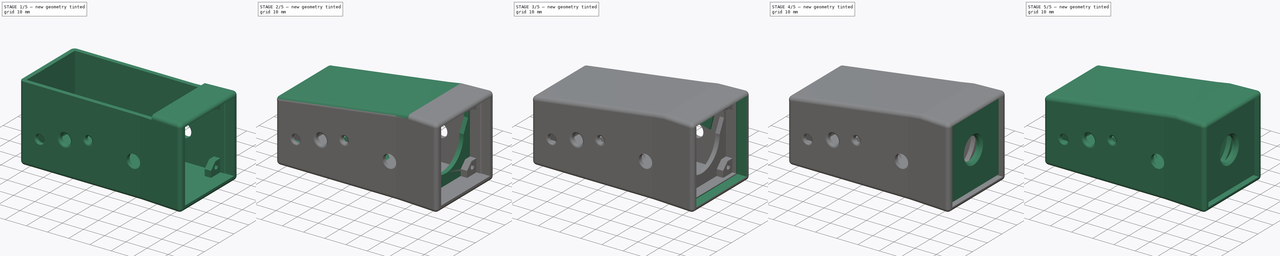
[diagram: build sequence overview — one tinted view per stage of 5, left to right]
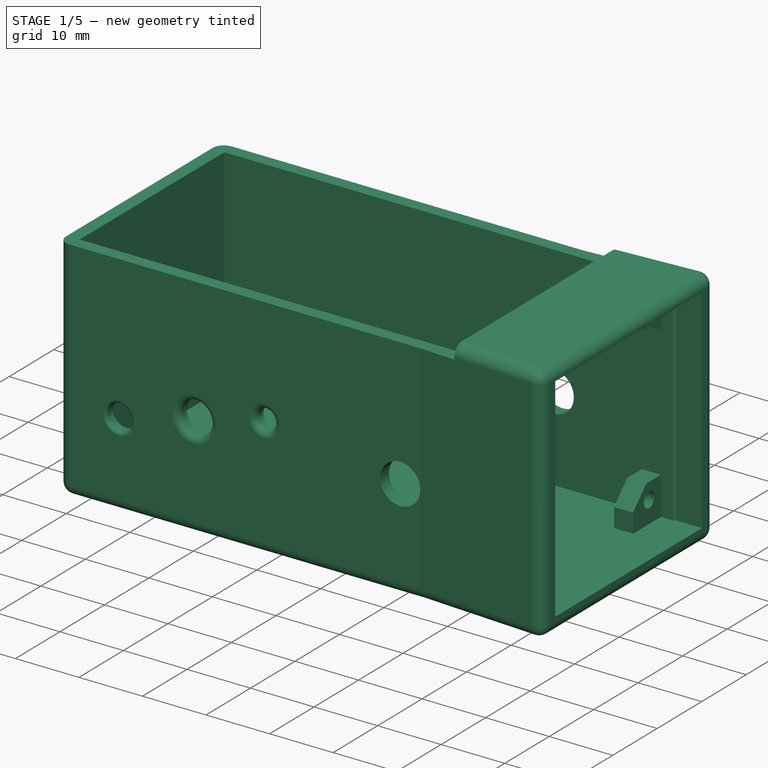
[diagram: stage 1 of 5 — iso view after this stage's code; geometry added in this stage tinted green]
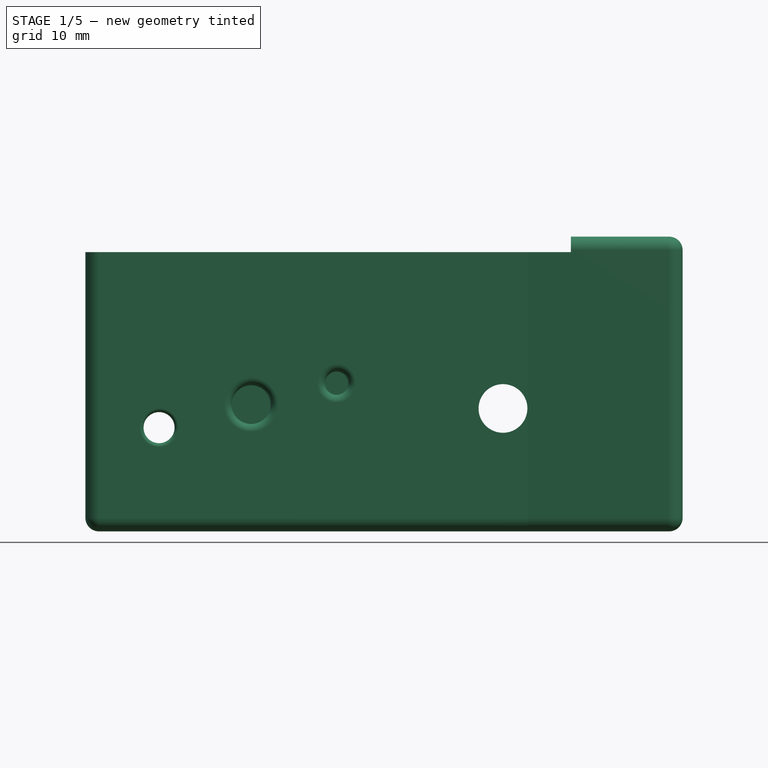
[diagram: stage 1 of 5 — front view after this stage's code; geometry added in this stage tinted green]
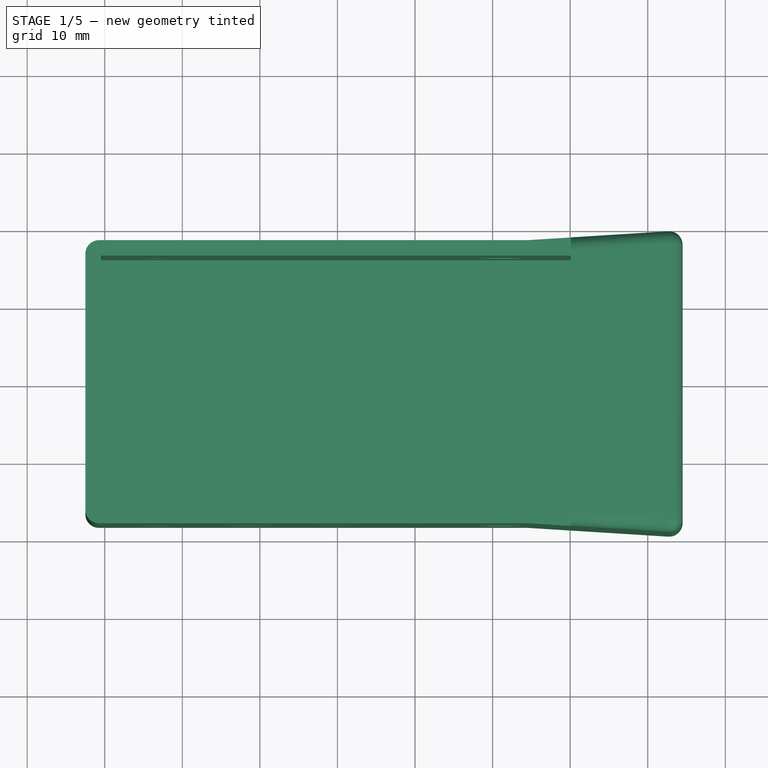
[diagram: stage 1 of 5 — top view after this stage's code; geometry added in this stage tinted green]
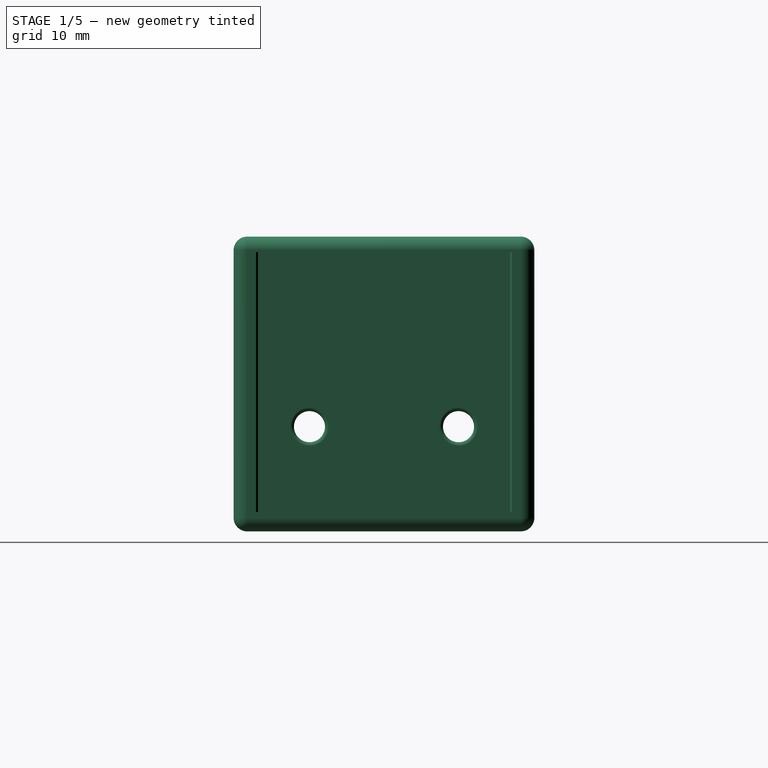
[diagram: stage 1 of 5 — right view after this stage's code; geometry added in this stage tinted green]
FCSTD DOCUMENT  (FreeCAD 0.20R29603 (Git))
Label: FM3_case
License: All rights reserved
LicenseURL: http://en.wikipedia.org/wiki/All_rights_reserved
objects: Sketcher::SketchObject×45, PartDesign::Pad×26, PartDesign::Pocket×15, Part::FeaturePython×14, PartDesign::Fillet×6, PartDesign::Chamfer×6, Part::Extrusion×4, Part::Feature×4, App::Part×2, PartDesign::Body×2, App::DocumentObjectGroup×1
note: 175 computed .brp shape members not serialized (recipe doc carries the construction recipe); baked Part::Feature solids carry a one-line shape summary decoded from their .brp

FEATURE [Sketcher::SketchObject] Sketch
  AttachmentOffset = pos=(0,0,7) rot=(0,0,1;0rad)
  FullyConstrained = false
  MapMode = 5
  Placement = pos=(0,-16.25,2e-15) rot=(1,0,0;1.5708rad)
  sketch-geometry (17):
    g0: LineSegment StartX=-70.25 StartY=-7 StartZ=0 EndX=-56.569 EndY=-7 EndZ=0
    g1: LineSegment StartX=-68.25 StartY=9.75 StartZ=0 EndX=-16.5 EndY=17.25 EndZ=0
    g2: LineSegment StartX=-56.569 StartY=-3.78737 StartZ=0 EndX=-35.7819 EndY=0.735739 EndZ=0
    g3: LineSegment StartX=-56.569 StartY=-3.78737 StartZ=0 EndX=-56.569 EndY=-7 EndZ=0
    g4: LineSegment StartX=-29.3431 StartY=-4.995 StartZ=0 EndX=-35.7819 EndY=0.735739 EndZ=0
    g5: LineSegment StartX=-9.2 StartY=16.3 StartZ=0 EndX=-12.5837 EndY=4.53801 EndZ=0
    g6: LineSegment StartX=-12.5837 StartY=4.53801 StartZ=0 EndX=-13.1049 EndY=-2.52068 EndZ=0
    g7: LineSegment StartX=-13.1049 StartY=-2.52068 StartZ=0 EndX=-29.3431 EndY=-4.995 EndZ=0
    g8: LineSegment StartX=-70.25 StartY=-7 StartZ=0 EndX=-70.2 EndY=-6.9 EndZ=0
    g9: LineSegment StartX=-70.2 StartY=-6.9 StartZ=0 EndX=-56.7 EndY=-6.9 EndZ=0
    g10: LineSegment StartX=-56.7 StartY=-6.9 StartZ=0 EndX=-56.7 EndY=-3.7 EndZ=0
    g11: LineSegment StartX=-56.7 StartY=-3.7 StartZ=0 EndX=-35.7 EndY=0.837377 EndZ=0
    g12: LineSegment StartX=-35.7 StartY=0.837377 StartZ=0 EndX=-29.3408 EndY=-4.86955 EndZ=0
    g13: LineSegment StartX=-29.3408 StartY=-4.86955 StartZ=0 EndX=-13.2 EndY=-2.4416 EndZ=0
    g14: LineSegment StartX=-13.2 StartY=-2.4416 StartZ=0 EndX=-12.6745 EndY=4.56177 EndZ=0
    g15: LineSegment StartX=-12.6745 StartY=4.56177 StartZ=0 EndX=-9.3 EndY=16.2569 EndZ=0
    g16: LineSegment StartX=-9.3 StartY=16.2569 StartZ=0 EndX=-9.2 EndY=16.3 EndZ=0
  constraints (23):
    c: DistanceX(g1) = -16.5
    c: DistanceY(g1) = 17.25
    c: DistanceX(g1) = -68.25
    c: DistanceY(g1) = 9.75
    c: Coincident(g3,g2)
    c: Vertical(g3)
    c: Coincident(g0,g3)
    c: Coincident(g4,g2)
    c: Coincident(g5,g6)
    c: Coincident(g6,g7)
    c: Horizontal(g0)
    c: Coincident(g0,g8)
    c: Coincident(g8,g9)
    c: Horizontal(g9)
    c: Coincident(g9,g10)
    c: Vertical(g10)
    c: Coincident(g10,g11)
    c: Coincident(g11,g12)
    c: Coincident(g12,g13)
    c: Coincident(g13,g14)
    c: Coincident(g14,g15)
    c: Coincident(g15,g16)
    c: Coincident(g16,g5)
FEATURE [Part::Extrusion] Extrude
  Base = -> Sketch
  Dir = (0,-1,2e-16)
  DirMode = 2
  FaceMakerClass = Part::FaceMakerBullseye
  LengthFwd = 5
  LengthRev = 0.1
  Solid = false
  Symmetric = false
FEATURE [Sketcher::SketchObject] Sketch011
  AttachmentOffset = pos=(0,0,-17) rot=(0,0,1;0rad)
  FullyConstrained = false
  MapMode = 5
  Placement = pos=(0,0,-17) rot=(0,0,1;0rad)
  Support = -> [XY_Plane003]
  sketch-geometry (14):
    g0: LineSegment StartX=0 StartY=16.25 StartZ=0 EndX=0.5 EndY=16.5 EndZ=0
    g1: LineSegment StartX=0.5 StartY=16.5 StartZ=0 EndX=4.5 EndY=16.5 EndZ=0
    g2: LineSegment StartX=4.5 StartY=16.5 StartZ=0 EndX=4.5 EndY=19.5 EndZ=0
    g3: LineSegment StartX=4.5 StartY=19.5 StartZ=0 EndX=-15.5 EndY=18.25 EndZ=0
    g4: LineSegment StartX=-15.5 StartY=18.25 StartZ=0 EndX=-72.5 EndY=18.25 EndZ=0
    g5: LineSegment StartX=-70.5 StartY=-16.25 StartZ=0 EndX=-70.5 EndY=16.25 EndZ=0
    g6: LineSegment StartX=-70.5 StartY=16.25 StartZ=0 EndX=0 EndY=16.25 EndZ=0
    g7: LineSegment StartX=0 StartY=-16.25 StartZ=0 EndX=0.5 EndY=-16.5 EndZ=0
    g8: LineSegment StartX=0.5 StartY=-16.5 StartZ=0 EndX=4.5 EndY=-16.5 EndZ=0
    g9: LineSegment StartX=4.5 StartY=-16.5 StartZ=0 EndX=4.5 EndY=-19.5 EndZ=0
    g10: LineSegment StartX=4.5 StartY=-19.5 StartZ=0 EndX=-15.5 EndY=-18.25 EndZ=0
    g11: LineSegment StartX=-15.5 StartY=-18.25 StartZ=0 EndX=-72.5 EndY=-18.25 EndZ=0
    g12: LineSegment StartX=-72.5 StartY=18.25 StartZ=0 EndX=-72.5 EndY=-18.25 EndZ=0
    g13: LineSegment StartX=-70.5 StartY=-16.25 StartZ=0 EndX=0 EndY=-16.25 EndZ=0
  constraints (29):
    c: PointOnObject(g0,g-2)
    c: Coincident(g0,g1)
    c: Horizontal(g1)
    c: Coincident(g1,g2)
    c: Vertical(g2)
    c: Coincident(g3,g4)
    c: Horizontal(g4)
    c: Vertical(g5)
    c: Coincident(g5,g6)
    c: Horizontal(g6)
    c: Coincident(g7,g8)
    c: Horizontal(g8)
    c: Coincident(g8,g9)
    c: Vertical(g9)
    c: Coincident(g10,g11)
    c: Horizontal(g11)
    c: Vertical(g12)
    c: Horizontal(g13)
    c: Coincident(g12,g11)
    c: Symmetric(g10,g3,g-1)
    c: Symmetric(g2,g9,g-1)
    c: Coincident(g3,g2)
    c: Coincident(g9,g10)
    c: Coincident(g0,g6)
    c: Coincident(g7,g13)
    c: Coincident(g13,g5)
    c: DistanceX(g11) = -72.5
    c: DistanceY(g11) = -18.25
    c: Coincident(g4,g12)
FEATURE [PartDesign::Pad] Pad003  label="side_back_X/Y"
  Direction = (1,1,1)
  Length = 33.5
  Length2 = 100
  Profile = -> Sketch011
  Refine = true
  Type = 0
FEATURE [Sketcher::SketchObject] Sketch012
  AttachmentOffset = pos=(0,0,-17) rot=(0,0,1;0rad)
  FullyConstrained = false
  MapMode = 5
  Placement = pos=(0,0,-17) rot=(0,0,1;0rad)
  Support = -> [XY_Plane003]
  sketch-geometry (6):
    g0: LineSegment StartX=-72.5 StartY=18.25 StartZ=0 EndX=-15.5 EndY=18.25 EndZ=0
    g1: LineSegment StartX=-15.5 StartY=18.25 StartZ=0 EndX=4.5 EndY=19.5 EndZ=0
    g2: LineSegment StartX=4.5 StartY=19.5 StartZ=0 EndX=4.5 EndY=-19.5 EndZ=0
    g3: LineSegment StartX=4.5 StartY=-19.5 StartZ=0 EndX=-15.5 EndY=-18.25 EndZ=0
    g4: LineSegment StartX=-15.5 StartY=-18.25 StartZ=0 EndX=-72.5 EndY=-18.25 EndZ=0
    g5: LineSegment StartX=-72.5 StartY=-18.25 StartZ=0 EndX=-72.5 EndY=18.25 EndZ=0
  constraints (11):
    c: Horizontal(g0)
    c: Coincident(g0,g1)
    c: Coincident(g1,g2)
    c: Vertical(g2)
    c: Coincident(g2,g3)
    c: Coincident(g3,g4)
    c: Horizontal(g4)
    c: Coincident(g4,g5)
    c: Coincident(g5,g0)
    c: Vertical(g5)
    c: Symmetric(g3,g0,g-1)
FEATURE [PartDesign::Pad] Pad004  label="floor"
  BaseFeature = -> Pad003
  Direction = (1,1,1)
  Length = 2.5
  Length2 = 100
  Profile = -> Sketch012
  Refine = true
  Reversed = true
  Type = 0
FEATURE [Sketcher::SketchObject] Sketch013
  AttachmentOffset = pos=(0,0,16.5) rot=(0,0,1;0rad)
  FullyConstrained = false
  MapMode = 5
  Placement = pos=(0,0,16.5) rot=(0,0,1;0rad)
  Support = -> [XY_Plane003]
  sketch-geometry (4):
    g0: LineSegment StartX=4.5 StartY=19.5 StartZ=0 EndX=4.5 EndY=-19.5 EndZ=0
    g1: LineSegment StartX=-9.9 StartY=18.6 StartZ=0 EndX=-9.9 EndY=-18.6 EndZ=0
    g2: LineSegment StartX=4.5 StartY=19.5 StartZ=0 EndX=-9.9 EndY=18.6 EndZ=0
    g3: LineSegment StartX=4.5 StartY=-19.5 StartZ=0 EndX=-9.9 EndY=-18.6 EndZ=0
  constraints (6):
    c: Coincident(g2,g0)
    c: Coincident(g3,g0)
    c: Coincident(g1,g3)
    c: Coincident(g2,g1)
    c: Symmetric(g0,g0,g-1)
    c: Symmetric(g1,g1,g-1)
FEATURE [PartDesign::Pad] Pad005  label="ceiling"
  BaseFeature = -> Pad004
  Direction = (1,1,1)
  Length = 2
  Length2 = 100
  Profile = -> Sketch013
  Refine = true
  Type = 0
FEATURE [PartDesign::Fillet] Fillet
  Base = -> Pad005 [Edge38,Edge49,Edge51,Edge52,Edge39,Edge47,Edge46,Edge41,Edge42,Edge44,Edge45,Edge50,Edge48]
  BaseFeature = -> Pad005
  Radius = 1.75
  Refine = true
  SupportTransform = false
  UseAllEdges = false
FEATURE [Sketcher::SketchObject] Sketch014
  FullyConstrained = false
  MapMode = 5
  Placement = pos=(0,0,0) rot=(1,0,0;1.5708rad)
  Support = -> [XZ_Plane003]
  sketch-geometry (3):
    g0: Circle CenterX=-18.6658 CenterY=-3.63638 CenterZ=0 NormalX=0 NormalY=0 NormalZ=1 AngleXU=0 Radius=3.15
    g1: Circle CenterX=-40.1148 CenterY=-0.393897 CenterZ=0 NormalX=0 NormalY=0 NormalZ=1 AngleXU=0 Radius=1.5
    g2: Circle CenterX=-51.1393 CenterY=-3.15479 CenterZ=0 NormalX=0 NormalY=0 NormalZ=1 AngleXU=0 Radius=2.5
  constraints (3):
    c: Radius(g0) = 3.15
    c: Radius(g2) = 2.5
    c: Radius(g1) = 1.5
FEATURE [PartDesign::Pocket] Pocket008  label="jack1_button_TSOP"
  BaseFeature = -> Fillet
  Direction = (1,1,1)
  Length = 50
  Length2 = 100
  Profile = -> Sketch014
  Refine = true
  Reversed = true
  Type = 0
FEATURE [PartDesign::Fillet] Fillet001  label="fillet_jacks_button"
  Base = -> Pocket008 [Edge16,Edge17]
  BaseFeature = -> Pocket008
  Radius = 1
  Refine = true
  SupportTransform = false
  UseAllEdges = false
FEATURE [Sketcher::SketchObject] Sketch015
  AttachmentOffset = pos=(0,0,-1.8) rot=(0,0,1;0rad)
  FullyConstrained = false
  MapMode = 5
  Placement = pos=(-1.8,4e-16,-4e-16) rot=(0.57735,0.57735,0.57735;2.0944rad)
  Support = -> [YZ_Plane003]
  sketch-geometry (12):
    g0: Circle CenterX=-13.6 CenterY=-13.6 CenterZ=0 NormalX=0 NormalY=0 NormalZ=1 AngleXU=0 Radius=1.15
    g1: LineSegment StartX=-17 StartY=-18 StartZ=0 EndX=-17 EndY=-11 EndZ=0
    g2: LineSegment StartX=-17 StartY=-11 StartZ=0 EndX=-13 EndY=-11 EndZ=0
    g3: LineSegment StartX=-13 StartY=-11 StartZ=0 EndX=-10 EndY=-14 EndZ=0
    g4: LineSegment StartX=-10 StartY=-14 StartZ=0 EndX=-10 EndY=-18 EndZ=0
    g5: LineSegment StartX=-10 StartY=-18 StartZ=0 EndX=-17 EndY=-18 EndZ=0
    g6: Circle CenterX=13.6 CenterY=-13.6 CenterZ=0 NormalX=0 NormalY=0 NormalZ=1 AngleXU=0 Radius=1.15
    g7: LineSegment StartX=17 StartY=-18 StartZ=0 EndX=17 EndY=-11 EndZ=0
    g8: LineSegment StartX=17 StartY=-11 StartZ=0 EndX=13 EndY=-11 EndZ=0
    g9: LineSegment StartX=13 StartY=-11 StartZ=0 EndX=10 EndY=-14 EndZ=0
    g10: LineSegment StartX=10 StartY=-14 StartZ=0 EndX=10 EndY=-18 EndZ=0
    g11: LineSegment StartX=10 StartY=-18 StartZ=0 EndX=17 EndY=-18 EndZ=0
  constraints (18):
    c: Diameter(g0) = 2.3
    c: Vertical(g1)
    c: Coincident(g1,g2)
    c: Horizontal(g2)
    c: Coincident(g2,g3)
    c: Coincident(g3,g4)
    c: Vertical(g4)
    c: Coincident(g4,g5)
    c: Horizontal(g5)
    c: Diameter(g6) = 2.3
    c: Vertical(g7)
    c: Coincident(g7,g8)
    c: Horizontal(g8)
    c: Coincident(g8,g9)
    c: Coincident(g9,g10)
    c: Vertical(g10)
    c: Coincident(g10,g11)
    c: Horizontal(g11)
FEATURE [Sketcher::SketchObject] Sketch018
  FullyConstrained = false
  MapMode = 5
  Placement = pos=(0,0,0) rot=(1,0,0;1.5708rad)
  Support = -> [XZ_Plane003]
  sketch-geometry (1):
    g0: Circle CenterX=-18.659 CenterY=-3.66743 CenterZ=0 NormalX=0 NormalY=0 NormalZ=1 AngleXU=0 Radius=3.15
  constraints (1):
    c: Radius(g0) = 3.15
FEATURE [PartDesign::Pocket] Pocket009  label="jack2"
  BaseFeature = -> Fillet001
  Direction = (1,1,1)
  Length = 50
  Length2 = 100
  Profile = -> Sketch018
  Refine = true
  Type = 0
FEATURE [Sketcher::SketchObject] Sketch019
  FullyConstrained = false
  MapMode = 5
  Placement = pos=(0,0,0) rot=(1,0,0;1.5708rad)
  Support = -> [XZ_Plane003]
  sketch-geometry (1):
    g0: Circle CenterX=-63 CenterY=-6.12189 CenterZ=0 NormalX=0 NormalY=0 NormalZ=1 AngleXU=0 Radius=2
  constraints (1):
    c: Radius(g0) = 2
FEATURE [PartDesign::Pocket] Pocket010  label="ir_tx_side"
  BaseFeature = -> Pocket009
  Direction = (1,1,1)
  Length = 50
  Length2 = 100
  Profile = -> Sketch019
  Refine = true
  Reversed = true
  Type = 0
FEATURE [Sketcher::SketchObject] Sketch020
  AttachmentOffset = pos=(0,0,-70) rot=(0,0,1;0rad)
  FullyConstrained = false
  MapMode = 5
  Placement = pos=(-70,1.55e-14,-1.55e-14) rot=(0.57735,0.57735,0.57735;2.0944rad)
  Support = -> [YZ_Plane003]
  sketch-geometry (2):
    g0: Circle CenterX=-9.60913 CenterY=-6 CenterZ=0 NormalX=0 NormalY=0 NormalZ=1 AngleXU=0 Radius=2
    g1: Circle CenterX=9.60913 CenterY=-6 CenterZ=0 NormalX=0 NormalY=0 NormalZ=1 AngleXU=0 Radius=2
  constraints (2):
    c: Radius(g0) = 2
    c: Radius(g1) = 2
FEATURE [Sketcher::SketchObject] Sketch021
  AttachmentOffset = pos=(0.75,0,-17.5) rot=(0,0,1;0rad)
  FullyConstrained = false
  MapMode = 5
  Placement = pos=(0.75,0,-17.5) rot=(0,0,1;0rad)
  Support = -> [XY_Plane003]
  sketch-geometry (12):
    g0: Circle CenterX=-68 CenterY=-14 CenterZ=0 NormalX=0 NormalY=0 NormalZ=1 AngleXU=0 Radius=1.15
    g1: LineSegment StartX=-72 StartY=-11 StartZ=0 EndX=-67 EndY=-11 EndZ=0
    g2: LineSegment StartX=-67 StartY=-11 StartZ=0 EndX=-65 EndY=-13 EndZ=0
    g3: LineSegment StartX=-65 StartY=-13 StartZ=0 EndX=-65 EndY=-17 EndZ=0
    g4: LineSegment StartX=-65 StartY=-17 StartZ=0 EndX=-72 EndY=-17 EndZ=0
    g5: LineSegment StartX=-72 StartY=-17 StartZ=0 EndX=-72 EndY=-11 EndZ=0
    g6: Circle CenterX=-68 CenterY=14 CenterZ=0 NormalX=0 NormalY=0 NormalZ=1 AngleXU=0 Radius=1.15
    g7: LineSegment StartX=-72 StartY=11 StartZ=0 EndX=-67 EndY=11 EndZ=0
    g8: LineSegment StartX=-67 StartY=11 StartZ=0 EndX=-65 EndY=13 EndZ=0
    g9: LineSegment StartX=-65 StartY=13 StartZ=0 EndX=-65 EndY=17 EndZ=0
    g10: LineSegment StartX=-65 StartY=17 StartZ=0 EndX=-72 EndY=17 EndZ=0
    g11: LineSegment StartX=-72 StartY=17 StartZ=0 EndX=-72 EndY=11 EndZ=0
  constraints (20):
    c: Radius(g0) = 1.15
    c: Horizontal(g1)
    c: Coincident(g1,g2)
    c: Coincident(g2,g3)
    c: Vertical(g3)
    c: Coincident(g3,g4)
    c: Horizontal(g4)
    c: Coincident(g4,g5)
    c: Coincident(g5,g1)
    c: Vertical(g5)
    c: Radius(g6) = 1.15
    c: Horizontal(g7)
    c: Coincident(g7,g8)
    c: Coincident(g8,g9)
    c: Vertical(g9)
    c: Coincident(g9,g10)
    c: Horizontal(g10)
    c: Coincident(g10,g11)
    c: Coincident(g11,g7)
    c: Vertical(g11)
FEATURE [Sketcher::SketchObject] Sketch022
  AttachmentOffset = pos=(0.75,0,-13) rot=(0,0,1;0rad)
  FullyConstrained = false
  MapMode = 5
  Placement = pos=(0.75,0,-13) rot=(0,0,1;0rad)
  Support = -> [XY_Plane003]
  sketch-geometry (2):
    g0: Circle CenterX=-68 CenterY=14 CenterZ=0 NormalX=0 NormalY=0 NormalZ=1 AngleXU=0 Radius=2.3
    g1: Circle CenterX=-68 CenterY=-14 CenterZ=0 NormalX=0 NormalY=0 NormalZ=1 AngleXU=0 Radius=2.3
  constraints (2):
    c: Radius(g0) = 2.3
    c: Radius(g1) = 2.3
FEATURE [Sketcher::SketchObject] Sketch023
  AttachmentOffset = pos=(0,0,-16) rot=(0,0,1;0rad)
  FullyConstrained = false
  MapMode = 5
  Placement = pos=(0,0,-16) rot=(0,0,1;0rad)
  Support = -> [XY_Plane003]
  sketch-geometry (1):
    g0: Circle CenterX=-49 CenterY=0 CenterZ=0 NormalX=0 NormalY=0 NormalZ=1 AngleXU=0 Radius=5
  constraints (1):
    c: PointOnObject(g0,g-1)
FEATURE [Sketcher::SketchObject] Sketch024
  AttachmentOffset = pos=(0,0,-16) rot=(0,0,1;0rad)
  FullyConstrained = false
  MapMode = 5
  Placement = pos=(0,0,-16) rot=(0,0,1;0rad)
  Support = -> [XY_Plane003]
  sketch-geometry (9):
    g0: GeomPoint X=-49 Y=0.5 Z=0
    g1: LineSegment StartX=-56.5 StartY=10 StartZ=0 EndX=-42 EndY=10 EndZ=0
    g2: LineSegment StartX=-39.5 StartY=7.5 StartZ=0 EndX=-39.5 EndY=-6.5 EndZ=0
    g3: LineSegment StartX=-42 StartY=-9 StartZ=0 EndX=-56.5 EndY=-9 EndZ=0
    g4: LineSegment StartX=-58.5 StartY=-7 StartZ=0 EndX=-58.5 EndY=8 EndZ=0
    g5: LineSegment StartX=-56.5 StartY=10 StartZ=0 EndX=-58.5 EndY=8 EndZ=0
    g6: LineSegment StartX=-42 StartY=10 StartZ=0 EndX=-39.5 EndY=7.5 EndZ=0
    g7: LineSegment StartX=-42 StartY=-9 StartZ=0 EndX=-39.5 EndY=-6.5 EndZ=0
    g8: LineSegment StartX=-56.5 StartY=-9 StartZ=0 EndX=-58.5 EndY=-7 EndZ=0
  constraints (11):
    c: Horizontal(g1)
    c: Horizontal(g3)
    c: Vertical(g4)
    c: Coincident(g1,g6)
    c: Coincident(g6,g2)
    c: Coincident(g1,g5)
    c: Coincident(g5,g4)
    c: Coincident(g2,g7)
    c: Coincident(g3,g7)
    c: Coincident(g3,g8)
    c: Coincident(g8,g4)
FEATURE [Sketcher::SketchObject] Sketch025
  AttachmentOffset = pos=(0,0,-17) rot=(0,0,1;0rad)
  FullyConstrained = false
  MapMode = 5
  Placement = pos=(0,0,-17) rot=(0,0,1;0rad)
  Support = -> [XY_Plane003]
  sketch-geometry (17):
    g0: GeomPoint X=-49 Y=0 Z=0
    g1: LineSegment StartX=-56.5 StartY=9.5 StartZ=0 EndX=-42 EndY=9.5 EndZ=0
    g2: LineSegment StartX=-39.5 StartY=7 StartZ=0 EndX=-39.5 EndY=-7 EndZ=0
    g3: LineSegment StartX=-42 StartY=-9.5 StartZ=0 EndX=-56.5 EndY=-9.5 EndZ=0
    g4: LineSegment StartX=-58.5 StartY=-7.5 StartZ=0 EndX=-58.5 EndY=7.5 EndZ=0
    g5: LineSegment StartX=-56.5 StartY=9.5 StartZ=0 EndX=-58.5 EndY=7.5 EndZ=0
    g6: LineSegment StartX=-42 StartY=9.5 StartZ=0 EndX=-39.5 EndY=7 EndZ=0
    g7: LineSegment StartX=-42 StartY=-9.5 StartZ=0 EndX=-39.5 EndY=-7 EndZ=0
    g8: LineSegment StartX=-56.5 StartY=-9.5 StartZ=0 EndX=-58.5 EndY=-7.5 EndZ=0
    g9: LineSegment StartX=-56.5 StartY=10.5 StartZ=0 EndX=-59.5 EndY=7.5 EndZ=0
    g10: LineSegment StartX=-59.5 StartY=7.5 StartZ=0 EndX=-59.5 EndY=-7.5 EndZ=0
    g11: LineSegment StartX=-59.5 StartY=-7.5 StartZ=0 EndX=-56.5 EndY=-10.5 EndZ=0
    g12: LineSegment StartX=-56.5 StartY=-10.5 StartZ=0 EndX=-42 EndY=-10.5 EndZ=0
    g13: LineSegment StartX=-42 StartY=-10.5 StartZ=0 EndX=-38.5 EndY=-7 EndZ=0
    g14: LineSegment StartX=-38.5 StartY=-7 StartZ=0 EndX=-38.5 EndY=7 EndZ=0
    g15: LineSegment StartX=-38.5 StartY=7 StartZ=0 EndX=-42 EndY=10.5 EndZ=0
    g16: LineSegment StartX=-42 StartY=10.5 StartZ=0 EndX=-56.5 EndY=10.5 EndZ=0
  constraints (22):
    c: Horizontal(g1)
    c: Horizontal(g3)
    c: Vertical(g4)
    c: Coincident(g1,g6)
    c: Coincident(g6,g2)
    c: Coincident(g1,g5)
    c: Coincident(g5,g4)
    c: Coincident(g2,g7)
    c: Coincident(g3,g7)
    c: Coincident(g3,g8)
    c: Coincident(g8,g4)
    c: Coincident(g9,g10)
    c: Vertical(g10)
    c: Coincident(g10,g11)
    c: Coincident(g11,g12)
    c: Horizontal(g12)
    c: Coincident(g12,g13)
    c: Coincident(g13,g14)
    c: Vertical(g14)
    c: Coincident(g14,g15)
    c: Coincident(g15,g16)
    c: Horizontal(g16)
FEATURE [Sketcher::SketchObject] Sketch026
  FullyConstrained = false
  MapMode = 5
  Placement = pos=(0,0,0) rot=(1,0,0;1.5708rad)
  Support = -> [XZ_Plane003]
  sketch-geometry (4):
    g0: LineSegment StartX=-73.25 StartY=7.5 StartZ=0 EndX=-9.5 EndY=16.5 EndZ=0
    g1: LineSegment StartX=-73.25 StartY=18.7208 StartZ=0 EndX=-73.25 EndY=7.5 EndZ=0
    g2: LineSegment StartX=-9.5 StartY=16.5 StartZ=0 EndX=-9.81352 EndY=18.7208 EndZ=0
    g3: LineSegment StartX=-9.81352 StartY=18.7208 StartZ=0 EndX=-73.25 EndY=18.7208 EndZ=0
  constraints (8):
    c: Coincident(g2,g3)
    c: Coincident(g0,g2)
    c: Coincident(g1,g0)
    c: Coincident(g3,g1)
    c: Horizontal(g3)
    c: Angle(g2,g0) = 1.5708
    c: DistanceX(g0) = -9.5
    c: DistanceY(g0) = 16.5
FEATURE [Sketcher::SketchObject] Sketch028
  AttachmentOffset = pos=(0,-1.5,-74) rot=(0,0,1;0rad)
  FullyConstrained = false
  MapMode = 5
  Placement = pos=(-74,1.61e-14,-1.5) rot=(0.57735,0.57735,0.57735;2.0944rad)
  Support = -> [YZ_Plane003]
  sketch-geometry (4):
    g0: LineSegment StartX=-2.24131 StartY=-8.5 StartZ=0 EndX=7.25869 EndY=-8.5 EndZ=0
    g1: LineSegment StartX=7.25869 StartY=-8.5 StartZ=0 EndX=7.25869 EndY=-12.5 EndZ=0
    g2: LineSegment StartX=7.25869 StartY=-12.5 StartZ=0 EndX=-2.24131 EndY=-12.5 EndZ=0
    g3: LineSegment StartX=-2.24131 StartY=-12.5 StartZ=0 EndX=-2.24131 EndY=-8.5 EndZ=0
  constraints (9):
    c: Coincident(g0,g1)
    c: Coincident(g1,g2)
    c: Coincident(g2,g3)
    c: Coincident(g3,g0)
    c: Horizontal(g2)
    c: Vertical(g1)
    c: Vertical(g3)
    c: DistanceX(g0,g0) = 9.5
    c: DistanceY(g1,g1) = 4
FEATURE [Sketcher::SketchObject] Sketch029
  AttachmentOffset = pos=(0.75,0,9) rot=(0,0,1;0rad)
  FullyConstrained = false
  MapMode = 5
  Placement = pos=(0.75,0,9) rot=(0,0,1;0rad)
  Support = -> [XY_Plane003]
  sketch-geometry (12):
    g0: Circle CenterX=-68 CenterY=14 CenterZ=0 NormalX=0 NormalY=0 NormalZ=1 AngleXU=0 Radius=0.95
    g1: LineSegment StartX=-71.5 StartY=11 StartZ=0 EndX=-67 EndY=11 EndZ=0
    g2: LineSegment StartX=-67 StartY=11 StartZ=0 EndX=-65 EndY=13 EndZ=0
    g3: LineSegment StartX=-65 StartY=13 StartZ=0 EndX=-65 EndY=16.5 EndZ=0
    g4: LineSegment StartX=-65 StartY=16.5 StartZ=0 EndX=-71.5 EndY=16.5 EndZ=0
    g5: LineSegment StartX=-71.5 StartY=16.5 StartZ=0 EndX=-71.5 EndY=11 EndZ=0
    g6: Circle CenterX=-68 CenterY=-14 CenterZ=0 NormalX=0 NormalY=0 NormalZ=1 AngleXU=0 Radius=0.95
    g7: LineSegment StartX=-71.5 StartY=-11 StartZ=0 EndX=-67 EndY=-11 EndZ=0
    g8: LineSegment StartX=-67 StartY=-11 StartZ=0 EndX=-65 EndY=-13 EndZ=0
    g9: LineSegment StartX=-65 StartY=-13 StartZ=0 EndX=-65 EndY=-16.5 EndZ=0
    g10: LineSegment StartX=-65 StartY=-16.5 StartZ=0 EndX=-71.5 EndY=-16.5 EndZ=0
    g11: LineSegment StartX=-71.5 StartY=-16.5 StartZ=0 EndX=-71.5 EndY=-11 EndZ=0
  constraints (12):
    c: Radius(g0) = 0.95
    c: Coincident(g1,g2)
    c: Coincident(g2,g3)
    c: Coincident(g3,g4)
    c: Coincident(g4,g5)
    c: Coincident(g5,g1)
    c: Radius(g6) = 0.95
    c: Coincident(g7,g8)
    c: Coincident(g8,g9)
    c: Coincident(g9,g10)
    c: Coincident(g10,g11)
    c: Coincident(g11,g7)
FEATURE [Sketcher::SketchObject] Sketch031
  AttachmentOffset = pos=(0,0,-74) rot=(0,0,1;0rad)
  FullyConstrained = false
  MapMode = 5
  Placement = pos=(-73.25,1.6e-14,-1.6e-14) rot=(0.57735,0.57735,0.57735;2.0944rad)
  sketch-geometry (12):
    g0: LineSegment StartX=-4.5 StartY=-7 StartZ=0 EndX=-21 EndY=-7 EndZ=0
    g1: LineSegment StartX=9.81764 StartY=-7 StartZ=0 EndX=21.0645 EndY=-7 EndZ=0
    g2: Circle CenterX=-4.5 CenterY=-7 CenterZ=0 NormalX=0 NormalY=0 NormalZ=1 AngleXU=0 Radius=1
    g3: Circle CenterX=-4.5 CenterY=-9.25 CenterZ=0 NormalX=0 NormalY=0 NormalZ=1 AngleXU=0 Radius=1
    g4: Circle CenterX=-2 CenterY=-10.25 CenterZ=0 NormalX=0 NormalY=0 NormalZ=1 AngleXU=0 Radius=1
    g5: BSplineCurve PolesCount=3 KnotsCount=2 Degree=2 IsPeriodic=0
    g6: GeomPoint X=-4.5 Y=-7 Z=0
    g7: GeomPoint X=-2 Y=-10.25 Z=0
    g8: LineSegment StartX=-2 StartY=-10.25 StartZ=0 EndX=7 EndY=-10.25 EndZ=0
    g9: LineSegment StartX=2.5 StartY=-9.75 StartZ=0 EndX=2.5 EndY=-10.75 EndZ=0
    g10: BSplineCurve PolesCount=3 KnotsCount=2 Degree=2 IsPeriodic=0
    g11: LineSegment StartX=7.85984 StartY=-7.58883 StartZ=0 EndX=9.81764 EndY=-7 EndZ=0
  constraints (14):
    c: Weight(g2) = 1
    c: Equal(g2,g3)
    c: Equal(g2,g4)
    c: InternalAlignment(g2,g5)
    c: InternalAlignment(g3,g5)
    c: InternalAlignment(g4,g5)
    c: InternalAlignment(g6,g5)
    c: InternalAlignment(g7,g5)
    c: Coincident(g5,g0)
    c: Coincident(g8,g5)
    c: Horizontal(g8)
    c: Coincident(g11,g10)
    c: Coincident(g11,g1)
    c: Coincident(g10,g8)
FEATURE [Part::Extrusion] Extrude002
  Base = -> Sketch031
  Dir = (1,0,0)
  DirMode = 2
  FaceMakerClass = Part::FaceMakerBullseye
  LengthFwd = 3
  LengthRev = 0
  Solid = false
  Symmetric = false
FEATURE [Sketcher::SketchObject] Sketch033
  FullyConstrained = false
  MapMode = 5
  Placement = pos=(0,0,0) rot=(1,0,0;1.5708rad)
  sketch-geometry (6):
    g0: LineSegment StartX=-9.2 StartY=16.3 StartZ=0 EndX=-9.5 EndY=16.5 EndZ=0
    g1: LineSegment StartX=-9.5 StartY=16.5 StartZ=0 EndX=-9.83905 EndY=18.6 EndZ=0
    g2: LineSegment StartX=-9.83905 StartY=18.6 StartZ=0 EndX=-9.76275 EndY=18.6 EndZ=0
    g3: LineSegment StartX=-9.76275 StartY=18.6 StartZ=0 EndX=-9.5 EndY=16.5 EndZ=0
    g4: LineSegment StartX=-9.5 StartY=16.5 StartZ=0 EndX=-9.3 EndY=16.2574 EndZ=0
    g5: LineSegment StartX=-9.3 StartY=16.2574 StartZ=0 EndX=-9.2 EndY=16.3 EndZ=0
  constraints (8):
    c: Coincident(g0,g1)
    c: Coincident(g1,g2)
    c: Horizontal(g2)
    c: Coincident(g2,g3)
    c: Coincident(g3,g0)
    c: Coincident(g0,g4)
    c: Coincident(g4,g5)
    c: Coincident(g5,g0)
FEATURE [Part::Extrusion] Extrude006
  Base = -> Sketch033
  Dir = (0,-1,2e-16)
  DirMode = 2
  FaceMakerClass = Part::FaceMakerBullseye
  LengthFwd = 42
  LengthRev = 0
  Solid = false
  Symmetric = true
FEATURE [Sketcher::SketchObject] Sketch034
  AttachmentOffset = pos=(0,0,-1.8) rot=(0,0,1;0rad)
  FullyConstrained = false
  MapMode = 5
  Placement = pos=(-1.8,4e-16,-4e-16) rot=(0.57735,0.57735,0.57735;2.0944rad)
  Support = -> [YZ_Plane003]
  sketch-geometry (22):
    g0: LineSegment StartX=-13.6 StartY=13.6 StartZ=0 EndX=13.6 EndY=13.6 EndZ=0
    g1: LineSegment StartX=-18 StartY=17 StartZ=0 EndX=-11 EndY=17 EndZ=0
    g2: LineSegment StartX=-18 StartY=11 StartZ=0 EndX=-18 EndY=17 EndZ=0
    g3: LineSegment StartX=-11 StartY=17 StartZ=0 EndX=-11 EndY=13 EndZ=0
    g4: LineSegment StartX=-11 StartY=13 StartZ=0 EndX=-13 EndY=11 EndZ=0
    g5: LineSegment StartX=-13 StartY=11 StartZ=0 EndX=-14 EndY=11 EndZ=0
    g6: Circle CenterX=-13.6 CenterY=13.6 CenterZ=0 NormalX=0 NormalY=0 NormalZ=1 AngleXU=0 Radius=1.15
    g7: LineSegment StartX=13.6 StartY=13.6 StartZ=0 EndX=-13.6 EndY=13.6 EndZ=0
    g8: LineSegment StartX=-14 StartY=11 StartZ=0 EndX=-16.5 EndY=9.5 EndZ=0
    g9: LineSegment StartX=-16.5 StartY=9.5 StartZ=0 EndX=-18 EndY=9.5 EndZ=0
    g10: LineSegment StartX=-18 StartY=9.5 StartZ=0 EndX=-18 EndY=11 EndZ=0
    g11: LineSegment StartX=13.6 StartY=13.6 StartZ=0 EndX=-13.6 EndY=13.6 EndZ=0
    g12: LineSegment StartX=18 StartY=17 StartZ=0 EndX=11 EndY=17 EndZ=0
    g13: LineSegment StartX=18 StartY=11 StartZ=0 EndX=18 EndY=17 EndZ=0
    g14: LineSegment StartX=11 StartY=17 StartZ=0 EndX=11 EndY=13 EndZ=0
    g15: LineSegment StartX=11 StartY=13 StartZ=0 EndX=13 EndY=11 EndZ=0
    g16: LineSegment StartX=13 StartY=11 StartZ=0 EndX=14 EndY=11 EndZ=0
    g17: Circle CenterX=13.6 CenterY=13.6 CenterZ=0 NormalX=0 NormalY=0 NormalZ=1 AngleXU=0 Radius=1.15
    g18: LineSegment StartX=-13.6 StartY=13.6 StartZ=0 EndX=13.6 EndY=13.6 EndZ=0
    g19: LineSegment StartX=14 StartY=11 StartZ=0 EndX=16.5 EndY=9.5 EndZ=0
    g20: LineSegment StartX=16.5 StartY=9.5 StartZ=0 EndX=18 EndY=9.5 EndZ=0
    g21: LineSegment StartX=18 StartY=9.5 StartZ=0 EndX=18 EndY=11 EndZ=0
  constraints (33):
    c: DistanceX(g0,g0) = 27.2
    c: Horizontal(g1)
    c: Coincident(g2,g1)
    c: Vertical(g2)
    c: Vertical(g3)
    c: Coincident(g3,g4)
    c: Coincident(g4,g5)
    c: Horizontal(g5)
    c: Coincident(g1,g3)
    c: Coincident(g6,g0)
    c: Radius(g6) = 1.15
    c: Coincident(g8,g9)
    c: Horizontal(g9)
    c: Coincident(g9,g10)
    c: Coincident(g10,g2)
    c: Vertical(g10)
    c: Coincident(g5,g8)
    c: Horizontal(g12)
    c: Coincident(g13,g12)
    c: Vertical(g13)
    c: Vertical(g14)
    c: Coincident(g14,g15)
    c: Coincident(g15,g16)
    c: Horizontal(g16)
    c: Coincident(g12,g14)
    c: Coincident(g17,g11)
    c: Radius(g17) = 1.15
    c: Coincident(g19,g20)
    c: Horizontal(g20)
    c: Coincident(g20,g21)
    c: Coincident(g21,g13)
    c: Vertical(g21)
    c: Coincident(g16,g19)
FEATURE [Sketcher::SketchObject] Sketch035
  AttachmentOffset = pos=(0.75,0,-11) rot=(0,0,1;0rad)
  FullyConstrained = false
  MapMode = 5
  Placement = pos=(0.75,0,-11) rot=(0,0,1;0rad)
  Support = -> [XY_Plane003]
  sketch-geometry (8):
    g0: LineSegment StartX=-69.5 StartY=12.75 StartZ=0 EndX=-71.5 EndY=12.75 EndZ=0
    g1: LineSegment StartX=-71.5 StartY=12.75 StartZ=0 EndX=-71.5 EndY=16.5 EndZ=0
    g2: LineSegment StartX=-71.5 StartY=16.5 StartZ=0 EndX=-69.5 EndY=16.5 EndZ=0
    g3: LineSegment StartX=-69.5 StartY=16.5 StartZ=0 EndX=-69.5 EndY=12.75 EndZ=0
    g4: LineSegment StartX=-69.5 StartY=-12.75 StartZ=0 EndX=-71.5 EndY=-12.75 EndZ=0
    g5: LineSegment StartX=-71.5 StartY=-12.75 StartZ=0 EndX=-71.5 EndY=-16.5 EndZ=0
    g6: LineSegment StartX=-71.5 StartY=-16.5 StartZ=0 EndX=-69.5 EndY=-16.5 EndZ=0
    g7: LineSegment StartX=-69.5 StartY=-16.5 StartZ=0 EndX=-69.5 EndY=-12.75 EndZ=0
  constraints (16):
    c: Coincident(g0,g1)
    c: Coincident(g1,g2)
    c: Coincident(g2,g3)
    c: Coincident(g3,g0)
    c: Horizontal(g0)
    c: Horizontal(g2)
    c: Vertical(g1)
    c: Vertical(g3)
    c: Coincident(g4,g5)
    c: Coincident(g5,g6)
    c: Coincident(g6,g7)
    c: Coincident(g7,g4)
    c: Horizontal(g4)
    c: Horizontal(g6)
    c: Vertical(g5)
    c: Vertical(g7)
FEATURE [Sketcher::SketchObject] Sketch037
  FullyConstrained = false
  MapMode = 5
  Placement = pos=(0,0,0) rot=(1,0,0;1.5708rad)
  Support = -> [XZ_Plane003]
  sketch-geometry (5):
    g0: LineSegment StartX=-9.75 StartY=16.25 StartZ=0 EndX=-7.75 EndY=16 EndZ=0
    g1: LineSegment StartX=-7.75 StartY=16 StartZ=0 EndX=-7.75 EndY=14.25 EndZ=0
    g2: LineSegment StartX=-7.75 StartY=14.25 StartZ=0 EndX=-11 EndY=14.5 EndZ=0
    g3: LineSegment StartX=-11 StartY=14.5 StartZ=0 EndX=-12.5 EndY=16.5 EndZ=0
    g4: LineSegment StartX=-12.5 StartY=16.5 StartZ=0 EndX=-9.75 EndY=16.25 EndZ=0
  constraints (3):
    c: Coincident(g0,g1)
    c: Coincident(g1,g2)
    c: Coincident(g3,g4)
FEATURE [Sketcher::SketchObject] Sketch038
  AttachmentOffset = pos=(-2,0,-3.5) rot=(0,1,0;0.244346rad)
  FullyConstrained = false
  MapMode = 5
  Placement = pos=(-2,0,-3.5) rot=(0,1,0;0.244346rad)
  Support = -> [XY_Plane003]
  sketch-geometry (12):
    g0: LineSegment StartX=-16.75 StartY=16.5 StartZ=0 EndX=-16.75 EndY=15.25 EndZ=0
    g1: LineSegment StartX=-16.75 StartY=15.25 StartZ=0 EndX=-10 EndY=15.25 EndZ=0
    g2: LineSegment StartX=-10 StartY=15.25 StartZ=0 EndX=-10 EndY=16 EndZ=0
    g3: LineSegment StartX=-10 StartY=16 StartZ=0 EndX=-13.25 EndY=16 EndZ=0
    g4: LineSegment StartX=-13.25 StartY=16 StartZ=0 EndX=-13.25 EndY=16.5 EndZ=0
    g5: LineSegment StartX=-13.25 StartY=16.5 StartZ=0 EndX=-16.75 EndY=16.5 EndZ=0
    g6: LineSegment StartX=-16.75 StartY=-16.5 StartZ=0 EndX=-16.75 EndY=-15.25 EndZ=0
    g7: LineSegment StartX=-16.75 StartY=-15.25 StartZ=0 EndX=-10 EndY=-15.25 EndZ=0
    g8: LineSegment StartX=-10 StartY=-15.25 StartZ=0 EndX=-10 EndY=-16 EndZ=0
    g9: LineSegment StartX=-10 StartY=-16 StartZ=0 EndX=-13.25 EndY=-16 EndZ=0
    g10: LineSegment StartX=-13.25 StartY=-16 StartZ=0 EndX=-13.25 EndY=-16.5 EndZ=0
    g11: LineSegment StartX=-13.25 StartY=-16.5 StartZ=0 EndX=-16.75 EndY=-16.5 EndZ=0
  constraints (24):
    c: Coincident(g0,g1)
    c: Coincident(g1,g2)
    c: Coincident(g2,g3)
    c: Coincident(g3,g4)
    c: Coincident(g4,g5)
    c: Coincident(g5,g0)
    c: DistanceX(g5,g5) = 3.5
    c: DistanceX(g3,g3) = 3.25
    c: Horizontal(g1)
    c: Vertical(g0)
    c: Horizontal(g5)
    c: Vertical(g4)
    c: Vertical(g2)
    c: Coincident(g6,g7)
    c: Coincident(g7,g8)
    c: Coincident(g8,g9)
    c: Coincident(g9,g10)
    c: Coincident(g10,g11)
    c: Coincident(g11,g6)
    c: Horizontal(g7)
    c: Vertical(g6)
    c: Horizontal(g11)
    c: Vertical(g10)
    c: Vertical(g8)
FEATURE [Sketcher::SketchObject] Sketch046
  AttachmentOffset = pos=(0,0,-6) rot=(0,0,1;0rad)
  FullyConstrained = false
  MapMode = 5
  Placement = pos=(0,0,-6) rot=(0,0,1;0rad)
  Support = -> [XY_Plane003]
  sketch-geometry (10):
    g0: LineSegment StartX=-9 StartY=-16 StartZ=0 EndX=-7 EndY=-12 EndZ=0
    g1: LineSegment StartX=-9 StartY=-16 StartZ=0 EndX=-9 EndY=-16.5 EndZ=0
    g2: LineSegment StartX=-9 StartY=-16.5 StartZ=0 EndX=-6.75 EndY=-16.5 EndZ=0
    g3: LineSegment StartX=-6.75 StartY=-16.5 StartZ=0 EndX=-6.75 EndY=-12 EndZ=0
    g4: LineSegment StartX=-6.75 StartY=-12 StartZ=0 EndX=-7 EndY=-12 EndZ=0
    g5: LineSegment StartX=-9 StartY=16 StartZ=0 EndX=-7 EndY=12 EndZ=0
    g6: LineSegment StartX=-9 StartY=16 StartZ=0 EndX=-9 EndY=16.5 EndZ=0
    g7: LineSegment StartX=-9 StartY=16.5 StartZ=0 EndX=-6.75 EndY=16.5 EndZ=0
    g8: LineSegment StartX=-6.75 StartY=16.5 StartZ=0 EndX=-6.75 EndY=12 EndZ=0
    g9: LineSegment StartX=-6.75 StartY=12 StartZ=0 EndX=-7 EndY=12 EndZ=0
  constraints (10):
    c: Coincident(g1,g2)
    c: Coincident(g2,g3)
    c: Coincident(g3,g4)
    c: Coincident(g0,g1)
    c: Vertical(g1)
    c: Coincident(g6,g7)
    c: Coincident(g7,g8)
    c: Coincident(g8,g9)
    c: Coincident(g5,g6)
    c: Vertical(g6)
FEATURE [Sketcher::SketchObject] Sketch047
  FullyConstrained = false
  MapMode = 5
  Placement = pos=(0,0,0) rot=(1,0,0;1.5708rad)
  Support = -> [XZ_Plane003]
  sketch-geometry (2):
    g0: Circle CenterX=-63 CenterY=-6.1232 CenterZ=0 NormalX=0 NormalY=0 NormalZ=1 AngleXU=0 Radius=2
    g1: GeomPoint X=-57.6994 Y=-2.5 Z=0
  constraints (1):
    c: Radius(g0) = 2
FEATURE [PartDesign::Pocket] Pocket023  label="ir_tx_side2"
  BaseFeature = -> Pocket010
  Direction = (1,1,1)
  Length = 50
  Length2 = 100
  Profile = -> Sketch047
  Type = 0
FEATURE [PartDesign::Pocket] Pocket011  label="ir_tx_back"
  BaseFeature = -> Pocket023
  Direction = (1,1,1)
  Length = 7
  Length2 = 100
  Profile = -> Sketch020
  Refine = true
  Type = 0
FEATURE [PartDesign::Fillet] Fillet003  label="fillet_ir_tx"
  Base = -> Pocket011 [Edge60,Edge40,Edge61,Edge39,Edge69,Edge56,Edge29,Edge5]
  BaseFeature = -> Pocket011
  Radius = 0.5
  Refine = true
  SupportTransform = false
  UseAllEdges = false
FEATURE [PartDesign::Pad] Pad006  label="distance_sensorPCB1"
  BaseFeature = -> Fillet003
  Direction = (1,-2e-16,3e-16)
  Length = 3
  Length2 = 100
  Profile = -> Sketch015
  Refine = true
  Reversed = true
  Type = 0
FEATURE [PartDesign::Pad] Pad  label="distance_sensorPCB2"
  BaseFeature = -> Pad006
  Direction = (1,-2e-16,3e-16)
  Length = 3
  Length2 = 100
  Profile = -> Sketch034
  Refine = true
  Reversed = true
  Type = 0
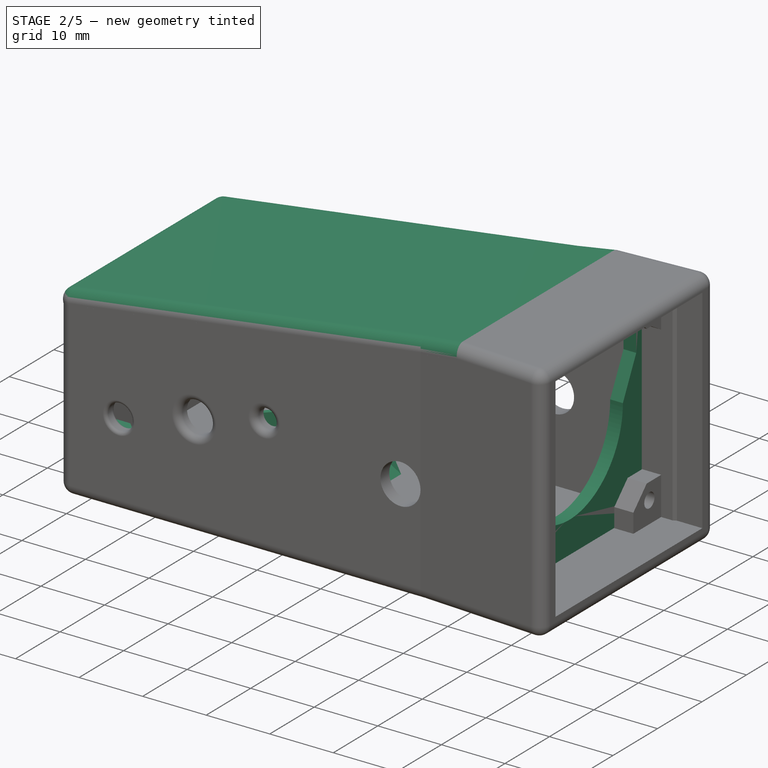
[diagram: stage 2 of 5 — iso view after this stage's code; geometry added in this stage tinted green]
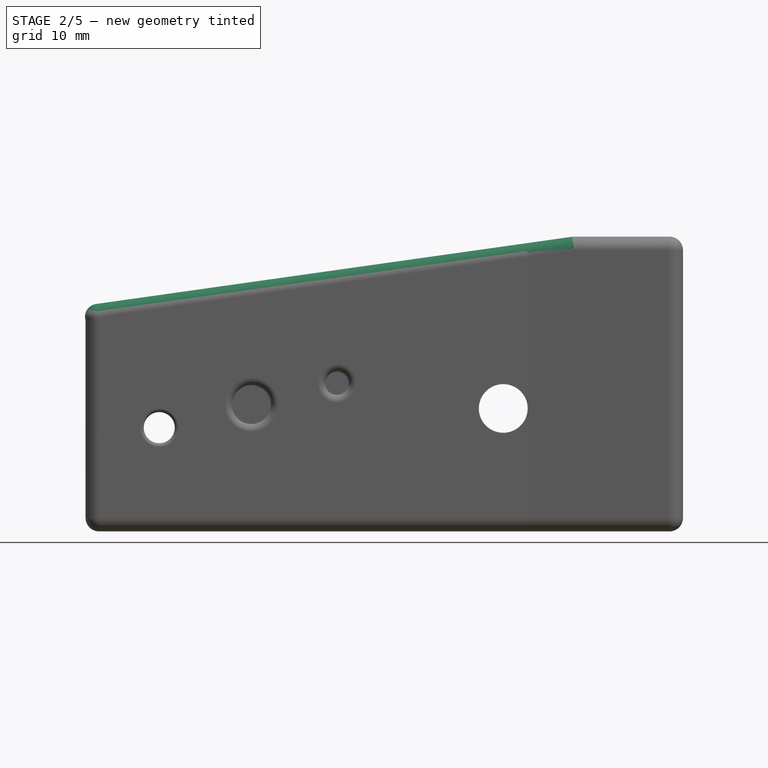
[diagram: stage 2 of 5 — front view after this stage's code; geometry added in this stage tinted green]
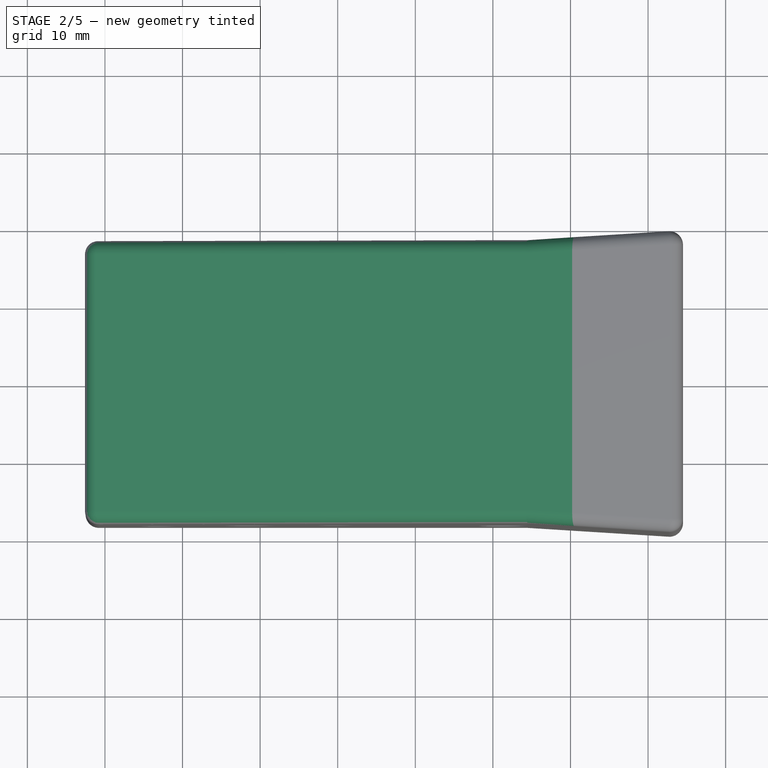
[diagram: stage 2 of 5 — top view after this stage's code; geometry added in this stage tinted green]
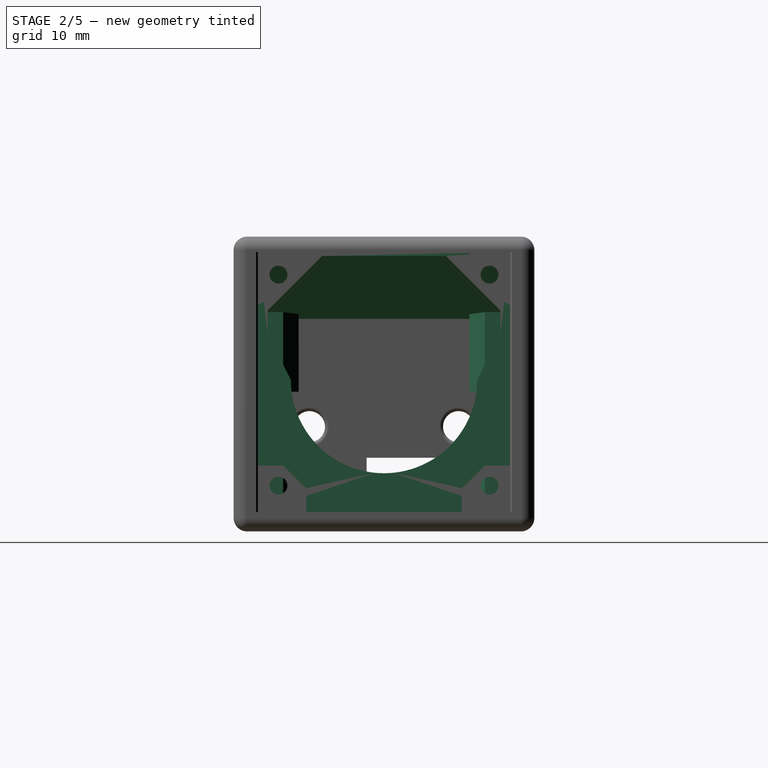
[diagram: stage 2 of 5 — right view after this stage's code; geometry added in this stage tinted green]
FEATURE [Sketcher::SketchObject] Sketch049
  AttachmentOffset = pos=(0,0,7) rot=(0,0,1;0rad)
  FullyConstrained = false
  MapMode = 5
  Placement = pos=(0,16.13,2e-15) rot=(1,0,0;1.5708rad)
  sketch-geometry (17):
    g0: LineSegment StartX=-70.25 StartY=-7 StartZ=0 EndX=-56.5952 EndY=-7 EndZ=0
    g1: LineSegment StartX=-68.25 StartY=9.75 StartZ=0 EndX=-16.5 EndY=17.25 EndZ=0
    g2: LineSegment StartX=-56.5952 StartY=-3.82722 StartZ=0 EndX=-35.8113 EndY=0.734762 EndZ=0
    g3: LineSegment StartX=-56.5952 StartY=-3.82722 StartZ=0 EndX=-56.5952 EndY=-7 EndZ=0
    g4: LineSegment StartX=-29.3354 StartY=-4.9963 StartZ=0 EndX=-35.8113 EndY=0.734762 EndZ=0
    g5: LineSegment StartX=-9.2 StartY=16.3 StartZ=0 EndX=-12.5876 EndY=4.53886 EndZ=0
    g6: LineSegment StartX=-12.5876 StartY=4.53886 StartZ=0 EndX=-13.1111 EndY=-2.51931 EndZ=0
    g7: LineSegment StartX=-13.1111 StartY=-2.51931 StartZ=0 EndX=-29.3354 EndY=-4.9963 EndZ=0
    g8: LineSegment StartX=-70.25 StartY=-7 StartZ=0 EndX=-70.2 EndY=-6.9 EndZ=0
    g9: LineSegment StartX=-70.2 StartY=-6.9 StartZ=0 EndX=-56.7 EndY=-6.9 EndZ=0
    g10: LineSegment StartX=-56.7 StartY=-6.9 StartZ=0 EndX=-56.7 EndY=-3.7 EndZ=0
    g11: LineSegment StartX=-56.7 StartY=-3.7 StartZ=0 EndX=-35.7 EndY=0.838157 EndZ=0
    g12: LineSegment StartX=-35.7 StartY=0.838157 StartZ=0 EndX=-29.3409 EndY=-4.86961 EndZ=0
    g13: LineSegment StartX=-29.3409 StartY=-4.86961 StartZ=0 EndX=-13.2 EndY=-2.44212 EndZ=0
    g14: LineSegment StartX=-13.2 StartY=-2.44212 StartZ=0 EndX=-12.6745 EndY=4.56222 EndZ=0
    g15: LineSegment StartX=-12.6745 StartY=4.56222 StartZ=0 EndX=-9.3 EndY=16.2573 EndZ=0
    g16: LineSegment StartX=-9.3 StartY=16.2573 StartZ=0 EndX=-9.2 EndY=16.3 EndZ=0
  constraints (23):
    c: DistanceX(g1) = -16.5
    c: DistanceY(g1) = 17.25
    c: DistanceX(g1) = -68.25
    c: DistanceY(g1) = 9.75
    c: Coincident(g3,g2)
    c: Vertical(g3)
    c: Coincident(g0,g3)
    c: Coincident(g4,g2)
    c: Coincident(g5,g6)
    c: Coincident(g6,g7)
    c: Coincident(g7,g4)
    c: Coincident(g0,g8)
    c: Coincident(g8,g9)
    c: Horizontal(g9)
    c: Coincident(g9,g10)
    c: Vertical(g10)
    c: Coincident(g10,g11)
    c: Coincident(g11,g12)
    c: Coincident(g12,g13)
    c: Coincident(g13,g14)
    c: Coincident(g14,g15)
    c: Coincident(g15,g16)
    c: Coincident(g16,g5)
FEATURE [Part::Extrusion] Extrude007
  Base = -> Sketch049
  Dir = (0,-1,2e-16)
  DirMode = 2
  FaceMakerClass = Part::FaceMakerBullseye
  LengthFwd = 0
  LengthRev = 5
  Solid = false
  Symmetric = false
FEATURE [App::Part] Part  label="slicing_base_lid"
  Group = -> [Sketch,Extrude,Sketch031,Extrude002,Sketch033,Extrude006,Sketch049,Extrude007]
  Origin = -> Origin065
FEATURE [Sketcher::SketchObject] Sketch050
  AttachmentOffset = pos=(0,0,-73) rot=(0,0,1;0rad)
  FullyConstrained = false
  MapMode = 5
  Placement = pos=(-73,1.62e-14,-1.62e-14) rot=(0.57735,0.57735,0.57735;2.0944rad)
  Support = -> [YZ_Plane003]
  sketch-geometry (4):
    g0: ArcOfCircle CenterX=5.5 CenterY=-12 CenterZ=0 NormalX=0 NormalY=0 NormalZ=1 AngleXU=0 Radius=3.5 StartAngle=4.71239 EndAngle=7.85398
    g1: ArcOfCircle CenterX=-0.5 CenterY=-12 CenterZ=0 NormalX=0 NormalY=0 NormalZ=1 AngleXU=0 Radius=3.5 StartAngle=1.5708 EndAngle=4.71239
    g2: LineSegment StartX=5.5 StartY=-8.5 StartZ=0 EndX=-0.5 EndY=-8.5 EndZ=0
    g3: LineSegment StartX=-0.5 StartY=-15.5 StartZ=0 EndX=5.5 EndY=-15.5 EndZ=0
  constraints (7):
    c: Tangent(g0,g2) = -1.5708
    c: Tangent(g2,g1) = -1.5708
    c: Tangent(g1,g3) = -1.5708
    c: Tangent(g3,g0) = -1.5708
    c: Equal(g0,g1)
    c: Horizontal(g2)
    c: DistanceY(g0,g0) = 7
FEATURE [Part::Feature] Extrude_solid001  label="Extrude (Solid)001"
  shape: bbox 61.05 x 5.1 x 23.3 mm, 16 faces (baked)
FEATURE [Part::Feature] Extrude002_solid001  label="Extrude002 (Solid)001"
  shape: bbox 3 x 42.06 x 3.25 mm, 6 faces (baked)
FEATURE [Part::Feature] Extrude006_solid  label="Extrude006 (Solid)"
  shape: bbox 0.639 x 42 x 2.343 mm, 6 faces (baked)
FEATURE [Part::Feature] Extrude007_solid001  label="Extrude007 (Solid)001"
  shape: bbox 61.05 x 5 x 23.3 mm, 16 faces (baked)
FEATURE [App::Part] Part001  label="slicing_solid"
  Group = -> [Extrude_solid001,Extrude002_solid001,Extrude006_solid,Extrude007_solid001]
  Origin = -> Origin
FEATURE [Sketcher::SketchObject] Sketch060
  FullyConstrained = false
  MapMode = 5
  Placement = pos=(0,0,0) rot=(0.57735,0.57735,0.57735;2.0944rad)
  Support = -> [YZ_Plane003]
  sketch-geometry (4):
    g0: LineSegment StartX=17 StartY=17 StartZ=0 EndX=-17 EndY=17 EndZ=0
    g1: LineSegment StartX=-17 StartY=17 StartZ=0 EndX=-17 EndY=-17.5 EndZ=0
    g2: LineSegment StartX=-17 StartY=-17.5 StartZ=0 EndX=17 EndY=-17.5 EndZ=0
    g3: LineSegment StartX=17 StartY=-17.5 StartZ=0 EndX=17 EndY=17 EndZ=0
  constraints (8):
    c: Coincident(g0,g1)
    c: Coincident(g1,g2)
    c: Coincident(g2,g3)
    c: Coincident(g3,g0)
    c: Horizontal(g0)
    c: Horizontal(g2)
    c: Vertical(g1)
    c: Vertical(g3)
FEATURE [Sketcher::SketchObject] Sketch062
  AttachmentOffset = pos=(0,2,-34) rot=(1,0,0;0.733038rad)
  FullyConstrained = false
  MapMode = 5
  Placement = pos=(-34,8e-15,2) rot=(0.674471,0.674471,0.300294;2.55814rad)
  Support = -> [YZ_Plane003]
  sketch-geometry (7):
    g0: LineSegment StartX=-19.25 StartY=-1.5 StartZ=0 EndX=-16 EndY=-1.5 EndZ=0
    g1: LineSegment StartX=-16 StartY=-1.5 StartZ=0 EndX=-16 EndY=-3.5 EndZ=0
    g2: LineSegment StartX=-16 StartY=-3.5 StartZ=0 EndX=-15.25 EndY=-3.5 EndZ=0
    g3: LineSegment StartX=-15.25 StartY=-3.5 StartZ=0 EndX=-15.25 EndY=1.75 EndZ=0
    g4: LineSegment StartX=-15.25 StartY=1.75 StartZ=0 EndX=-16.75 EndY=1.75 EndZ=0
    g5: LineSegment StartX=-16.75 StartY=1.75 StartZ=0 EndX=-16.75 EndY=-1.5 EndZ=0
    g6: LineSegment StartX=-16.75 StartY=-1.5 StartZ=0 EndX=-16 EndY=-1.5 EndZ=0
  constraints (14):
    c: Horizontal(g0)
    c: Coincident(g0,g1)
    c: Vertical(g1)
    c: Coincident(g1,g2)
    c: Horizontal(g2)
    c: Coincident(g2,g3)
    c: Vertical(g3)
    c: Coincident(g3,g4)
    c: Horizontal(g4)
    c: Coincident(g4,g5)
    c: PointOnObject(g5,g0)
    c: Vertical(g5)
    c: Coincident(g5,g6)
    c: Coincident(g6,g1)
FEATURE [Sketcher::SketchObject] Sketch063
  AttachmentOffset = pos=(0,-2.5,-30) rot=(1,0,0;-0.087266rad)
  FullyConstrained = false
  MapMode = 5
  Placement = pos=(-30,6.1e-15,-2.5) rot=(-0.559809,-0.559809,-0.610924;4.23842rad)
  Support = -> [YZ_Plane003]
  sketch-geometry (7):
    g0: LineSegment StartX=-19.25 StartY=-1.5 StartZ=0 EndX=-16 EndY=-1.5 EndZ=0
    g1: LineSegment StartX=-16 StartY=-1.5 StartZ=0 EndX=-16 EndY=-3.5 EndZ=0
    g2: LineSegment StartX=-16 StartY=-3.5 StartZ=0 EndX=-15.25 EndY=-3.5 EndZ=0
    g3: LineSegment StartX=-15.25 StartY=-3.5 StartZ=0 EndX=-15.25 EndY=1.75 EndZ=0
    g4: LineSegment StartX=-15.25 StartY=1.75 StartZ=0 EndX=-16.75 EndY=1.75 EndZ=0
    g5: LineSegment StartX=-16.75 StartY=1.75 StartZ=0 EndX=-16.75 EndY=-1.5 EndZ=0
    g6: LineSegment StartX=-16.75 StartY=-1.5 StartZ=0 EndX=-16 EndY=-1.5 EndZ=0
  constraints (14):
    c: Horizontal(g0)
    c: Coincident(g0,g1)
    c: Vertical(g1)
    c: Coincident(g1,g2)
    c: Horizontal(g2)
    c: Coincident(g2,g3)
    c: Vertical(g3)
    c: Coincident(g3,g4)
    c: Horizontal(g4)
    c: Coincident(g4,g5)
    c: PointOnObject(g5,g0)
    c: Vertical(g5)
    c: Coincident(g5,g6)
    c: Coincident(g6,g1)
FEATURE [Sketcher::SketchObject] Sketch064
  AttachmentOffset = pos=(0,-2,-58) rot=(1,0,0;-0.20944rad)
  FullyConstrained = false
  MapMode = 5
  Placement = pos=(-58,1.24e-14,-2) rot=(-0.532626,-0.532626,-0.657738;4.30518rad)
  Support = -> [YZ_Plane003]
  sketch-geometry (7):
    g0: LineSegment StartX=19.25 StartY=-1.5 StartZ=0 EndX=16 EndY=-1.5 EndZ=0
    g1: LineSegment StartX=16 StartY=-1.5 StartZ=0 EndX=16 EndY=-3.5 EndZ=0
    g2: LineSegment StartX=16 StartY=-3.5 StartZ=0 EndX=15.25 EndY=-3.5 EndZ=0
    g3: LineSegment StartX=15.25 StartY=-3.5 StartZ=0 EndX=15.25 EndY=1.75 EndZ=0
    g4: LineSegment StartX=15.25 StartY=1.75 StartZ=0 EndX=16.75 EndY=1.75 EndZ=0
    g5: LineSegment StartX=16.75 StartY=1.75 StartZ=0 EndX=16.75 EndY=-1.5 EndZ=0
    g6: LineSegment StartX=16.75 StartY=-1.5 StartZ=0 EndX=16 EndY=-1.5 EndZ=0
  constraints (14):
    c: Horizontal(g0)
    c: Coincident(g0,g1)
    c: Vertical(g1)
    c: Coincident(g1,g2)
    c: Horizontal(g2)
    c: Coincident(g2,g3)
    c: Vertical(g3)
    c: Coincident(g3,g4)
    c: Horizontal(g4)
    c: Coincident(g4,g5)
    c: PointOnObject(g5,g0)
    c: Vertical(g5)
    c: Coincident(g5,g6)
    c: Coincident(g6,g1)
FEATURE [Sketcher::SketchObject] Sketch065
  AttachmentOffset = pos=(0,2.5,-35) rot=(1,0,0;0.733038rad)
  FullyConstrained = false
  MapMode = 5
  Placement = pos=(-35,8.3e-15,2.5) rot=(0.674471,0.674471,0.300294;2.55814rad)
  Support = -> [YZ_Plane003]
  sketch-geometry (7):
    g0: LineSegment StartX=19.25 StartY=-1.5 StartZ=0 EndX=16 EndY=-1.5 EndZ=0
    g1: LineSegment StartX=16 StartY=-1.5 StartZ=0 EndX=16 EndY=-3.5 EndZ=0
    g2: LineSegment StartX=16 StartY=-3.5 StartZ=0 EndX=15.25 EndY=-3.5 EndZ=0
    g3: LineSegment StartX=15.25 StartY=-3.5 StartZ=0 EndX=15.25 EndY=1.75 EndZ=0
    g4: LineSegment StartX=15.25 StartY=1.75 StartZ=0 EndX=16.75 EndY=1.75 EndZ=0
    g5: LineSegment StartX=16.75 StartY=1.75 StartZ=0 EndX=16.75 EndY=-1.5 EndZ=0
    g6: LineSegment StartX=16.75 StartY=-1.5 StartZ=0 EndX=16 EndY=-1.5 EndZ=0
  constraints (14):
    c: Horizontal(g0)
    c: Coincident(g0,g1)
    c: Vertical(g1)
    c: Coincident(g1,g2)
    c: Horizontal(g2)
    c: Coincident(g2,g3)
    c: Vertical(g3)
    c: Coincident(g3,g4)
    c: Horizontal(g4)
    c: Coincident(g4,g5)
    c: PointOnObject(g5,g0)
    c: Vertical(g5)
    c: Coincident(g5,g6)
    c: Coincident(g6,g1)
FEATURE [Sketcher::SketchObject] Sketch066
  AttachmentOffset = pos=(0,-2.5,-30) rot=(1,0,0;-0.087266rad)
  FullyConstrained = false
  MapMode = 5
  Placement = pos=(-30,6.1e-15,-2.5) rot=(-0.559809,-0.559809,-0.610924;4.23842rad)
  Support = -> [YZ_Plane003]
  sketch-geometry (7):
    g0: LineSegment StartX=19.25 StartY=-1.5 StartZ=0 EndX=16 EndY=-1.5 EndZ=0
    g1: LineSegment StartX=16 StartY=-1.5 StartZ=0 EndX=16 EndY=-3.5 EndZ=0
    g2: LineSegment StartX=16 StartY=-3.5 StartZ=0 EndX=15.25 EndY=-3.5 EndZ=0
    g3: LineSegment StartX=15.25 StartY=-3.5 StartZ=0 EndX=15.25 EndY=1.75 EndZ=0
    g4: LineSegment StartX=15.25 StartY=1.75 StartZ=0 EndX=16.75 EndY=1.75 EndZ=0
    g5: LineSegment StartX=16.75 StartY=1.75 StartZ=0 EndX=16.75 EndY=-1.5 EndZ=0
    g6: LineSegment StartX=16.75 StartY=-1.5 StartZ=0 EndX=16 EndY=-1.5 EndZ=0
  constraints (14):
    c: Horizontal(g0)
    c: Coincident(g0,g1)
    c: Vertical(g1)
    c: Coincident(g1,g2)
    c: Horizontal(g2)
    c: Coincident(g2,g3)
    c: Vertical(g3)
    c: Coincident(g3,g4)
    c: Horizontal(g4)
    c: Coincident(g4,g5)
    c: PointOnObject(g5,g0)
    c: Vertical(g5)
    c: Coincident(g5,g6)
    c: Coincident(g6,g1)
FEATURE [Sketcher::SketchObject] Sketch067
  AttachmentOffset = pos=(0,0,-4.25) rot=(0,0,1;0rad)
  FullyConstrained = false
  MapMode = 5
  Placement = pos=(-4.85,0,0) rot=(0.57735,0.57735,0.57735;2.0944rad)
  sketch-geometry (22):
    g0: LineSegment StartX=-13.6 StartY=13.6 StartZ=0 EndX=13.6 EndY=13.6 EndZ=0
    g1: LineSegment StartX=13.6 StartY=13.6 StartZ=0 EndX=13.6 EndY=-13.6 EndZ=0
    g2: LineSegment StartX=-13.6 StartY=-13.6 StartZ=0 EndX=-13.6 EndY=13.6 EndZ=0
    g3: LineSegment StartX=-17 StartY=16.5 StartZ=0 EndX=17 EndY=16.5 EndZ=0
    g4: LineSegment StartX=-17 StartY=16.5 StartZ=0 EndX=-17 EndY=-17.5 EndZ=0
    g5: LineSegment StartX=17 StartY=-17.5 StartZ=0 EndX=-17 EndY=-17.5 EndZ=0
    g6: LineSegment StartX=17 StartY=16.5 StartZ=0 EndX=17 EndY=-17.5 EndZ=0
    g7: ArcOfCircle CenterX=0 CenterY=0 CenterZ=0 NormalX=0 NormalY=0 NormalZ=1 AngleXU=0 Radius=12 StartAngle=5.38752 EndAngle=6.28319
    g8: ArcOfCircle CenterX=0 CenterY=0 CenterZ=0 NormalX=0 NormalY=0 NormalZ=1 AngleXU=0 Radius=12 StartAngle=3.14159 EndAngle=4.03726
    g9: Circle CenterX=-13.6 CenterY=13.6 CenterZ=0 NormalX=0 NormalY=0 NormalZ=1 AngleXU=0 Radius=1.15
    g10: Circle CenterX=13.6 CenterY=13.6 CenterZ=0 NormalX=0 NormalY=0 NormalZ=1 AngleXU=0 Radius=1.15
    g11: LineSegment StartX=-13.6 StartY=-13.6 StartZ=0 EndX=13.6 EndY=-13.6 EndZ=0
    g12: ArcOfCircle CenterX=0 CenterY=0 CenterZ=0 NormalX=0 NormalY=0 NormalZ=1 AngleXU=0 Radius=12 StartAngle=4.03726 EndAngle=5.38752
    g13: LineSegment StartX=12 StartY=-2.9e-15 StartZ=0 EndX=15 EndY=6 EndZ=0
    g14: LineSegment StartX=15 StartY=6 StartZ=0 EndX=15 EndY=9 EndZ=0
    g15: LineSegment StartX=15 StartY=9 StartZ=0 EndX=8 EndY=16 EndZ=0
    g16: LineSegment StartX=-12 StartY=1.5e-15 StartZ=0 EndX=-15 EndY=6 EndZ=0
    g17: LineSegment StartX=-15 StartY=6 StartZ=0 EndX=-15 EndY=9 EndZ=0
    g18: LineSegment StartX=-15 StartY=9 StartZ=0 EndX=-8 EndY=16 EndZ=0
    g19: LineSegment StartX=8 StartY=16 StartZ=0 EndX=-8 EndY=16 EndZ=0
    g20: Circle CenterX=-13.6 CenterY=-13.6 CenterZ=0 NormalX=0 NormalY=0 NormalZ=1 AngleXU=0 Radius=1.15
    g21: Circle CenterX=13.6 CenterY=-13.6 CenterZ=0 NormalX=0 NormalY=0 NormalZ=1 AngleXU=0 Radius=1.15
  constraints (40):
    c: Coincident(g0,g1)
    c: Coincident(g2,g0)
    c: Symmetric(g1,g2,g-2)
    c: DistanceY(g1,g1) = 27.2
    c: DistanceX(g0,g0) = 27.2
    c: Horizontal(g3)
    c: Vertical(g4)
    c: Horizontal(g5)
    c: Coincident(g6,g5)
    c: Vertical(g6)
    c: Coincident(g7,g-1)
    c: Coincident(g7,g8)
    c: Coincident(g9,g0)
    c: Radius(g9) = 1.15
    c: Coincident(g10,g0)
    c: Coincident(g12,g7)
    c: PointOnObject(g13,g-1)
    c: Vertical(g14)
    c: Coincident(g14,g15)
    c: Vertical(g17)
    c: Coincident(g17,g18)
    c: Horizontal(g19)
    c: Coincident(g7,g13)
    c: Coincident(g16,g17)
    c: Coincident(g15,g19)
    c: Coincident(g18,g19)
    c: Coincident(g7,g12)
    c: Coincident(g8,g12)
    c: Coincident(g8,g16)
    c: Coincident(g13,g14)
    c: Coincident(g20,g2)
    c: Coincident(g21,g1)
    c: Equal(g21,g20)
    c: Equal(g20,g9)
    c: Equal(g21,g10)
    c: Symmetric(g10,g9,g-2)
    c: Symmetric(g10,g21,g-1)
    c: Coincident(g3,g4)
    c: Coincident(g3,g6)
    c: Coincident(g4,g5)
FEATURE [PartDesign::Pad] Pad029  label="distance_sensorPCB_round"
  BaseFeature = -> Pad
  Direction = (1,-1e-16,2e-16)
  Length = 2
  Length2 = 10
  Profile = -> Sketch067
  ReferenceAxis = -> Sketch067 [N_Axis]
  Reversed = true
  Type = 0
FEATURE [PartDesign::Pad] Pad009  label="distance_backPCB"
  BaseFeature = -> Pad029
  Direction = (0,0,1)
  Length = 7
  Length2 = 100
  Profile = -> Sketch021
  Refine = true
  Type = 0
FEATURE [PartDesign::Pocket] Pocket012  label="screwhead_back"
  BaseFeature = -> Pad009
  Direction = (0,0,-1)
  Length = 15
  Length2 = 100
  Profile = -> Sketch022
  Refine = true
  Type = 0
FEATURE [PartDesign::Pad] Pad014  label="support_pcb"
  BaseFeature = -> Pocket012
  Direction = (0,0,1)
  Length = 2
  Length2 = 100
  Profile = -> Sketch035
  Type = 0
FEATURE [PartDesign::Pocket] Pocket013  label="hotshoe_hole"
  BaseFeature = -> Pad014
  Direction = (0,0,-1)
  Length = 5
  Length2 = 100
  Profile = -> Sketch023
  Refine = true
  Type = 0
FEATURE [PartDesign::Pocket] Pocket014  label="hotshoe_rectangle"
  BaseFeature = -> Pocket013
  Direction = (0,0,-1)
  Length = 1.5
  Length2 = 100
  Profile = -> Sketch024
  Refine = true
  Type = 0
FEATURE [PartDesign::Pad] Pad010  label="hotshoe_support"
  BaseFeature = -> Pocket014
  Direction = (0,0,1)
  Length = 3
  Length2 = 100
  Profile = -> Sketch025
  Refine = true
  Type = 0
FEATURE [PartDesign::Chamfer] Chamfer002  label="hotshoe_support2"
  Angle = 45
  Base = -> Pad010 [Edge132,Edge133,Edge126,Edge128,Edge127,Edge129,Edge130,Edge131]
  BaseFeature = -> Pad010
  ChamferType = 2
  FlipDirection = false
  Size = 1.75
  Size2 = 1
  SupportTransform = false
  UseAllEdges = false
FEATURE [PartDesign::Pocket] Pocket015  label="bevel_top"
  BaseFeature = -> Chamfer002
  Direction = (0,1,2e-16)
  Length = 60
  Length2 = 100
  Midplane = true
  Profile = -> Sketch026
  Refine = true
  Type = 0
FEATURE [Sketcher::SketchObject] Sketch027
  FullyConstrained = false
  MapMode = 5
  Placement = pos=(-2.46953,-3.9e-15,17.4925) rot=(0,-1,0;0.14025rad)
  Support = -> [Pocket015]
  sketch-geometry (6):
    g0: LineSegment StartX=-7.09833 StartY=18.6245 StartZ=0 EndX=-13.1529 EndY=18.2516 EndZ=0
    g1: LineSegment StartX=-13.1529 StartY=18.2516 StartZ=0 EndX=-70.7265 EndY=18.2552 EndZ=0
    g2: LineSegment StartX=-70.7265 StartY=18.2552 StartZ=0 EndX=-70.7265 EndY=-18.2488 EndZ=0
    g3: LineSegment StartX=-70.7265 StartY=-18.2488 StartZ=0 EndX=-13.1047 EndY=-18.2509 EndZ=0
    g4: LineSegment StartX=-13.1047 StartY=-18.2509 StartZ=0 EndX=-7.1016 EndY=-18.6249 EndZ=0
    g5: LineSegment StartX=-7.1016 StartY=-18.6249 StartZ=0 EndX=-7.09833 EndY=18.6245 EndZ=0
  constraints (7):
    c: Coincident(g0,g1)
    c: Coincident(g1,g2)
    c: Coincident(g2,g3)
    c: Coincident(g3,g4)
    c: Coincident(g4,g5)
    c: Coincident(g5,g0)
    c: Vertical(g2)
FEATURE [PartDesign::Pad] Pad011  label="roof"
  BaseFeature = -> Pocket015
  Direction = (-0.13979,-2e-16,0.990181)
  Length = 2
  Length2 = 100
  Profile = -> Sketch027
  Refine = true
  Type = 0
FEATURE [PartDesign::Fillet] Fillet004  label="roof_edges"
  Base = -> Pad011 [Edge257,Edge259]
  BaseFeature = -> Pad011
  Radius = 1.75
  SupportTransform = false
  UseAllEdges = false
FEATURE [PartDesign::Fillet] Fillet005  label="roof_edges_back"
  Base = -> Fillet004 [Edge24]
  BaseFeature = -> Fillet004
  Radius = 1.65
  Refine = true
  SupportTransform = false
  UseAllEdges = false
FEATURE [PartDesign::Pocket] Pocket016  label="cutout_usb"
  BaseFeature = -> Fillet005
  Direction = (-1,2e-16,-3e-16)
  Length = 6
  Length2 = 100
  Profile = -> Sketch028
  Reversed = true
  Type = 0
FEATURE [PartDesign::Pad] Pad012  label="m2screws_roofback"
  BaseFeature = -> Pocket016
  Direction = (0,0,1)
  Length = 10.5
  Length2 = 100
  Profile = -> Sketch029
  Reversed = true
  Type = 0
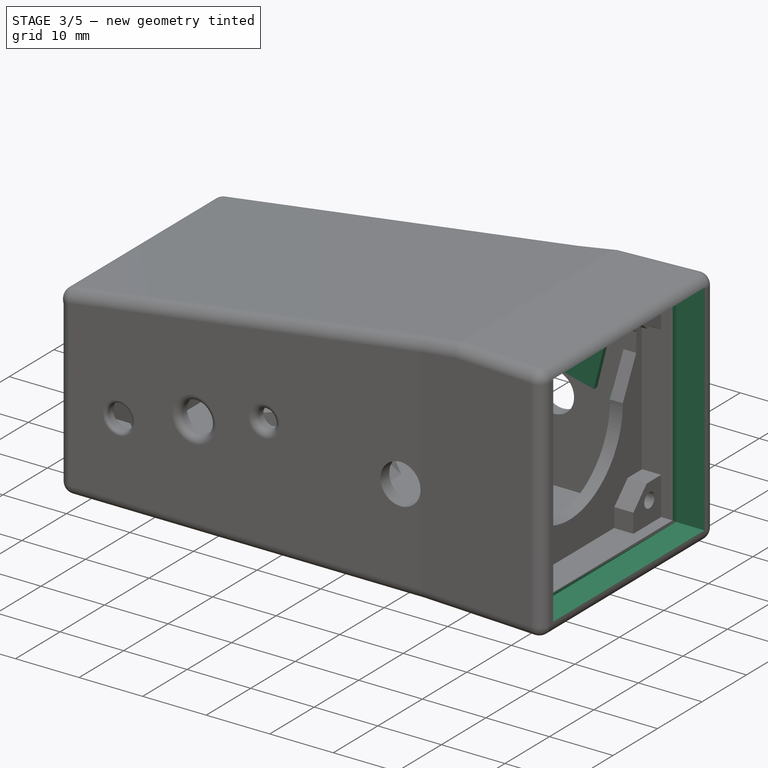
[diagram: stage 3 of 5 — iso view after this stage's code; geometry added in this stage tinted green]
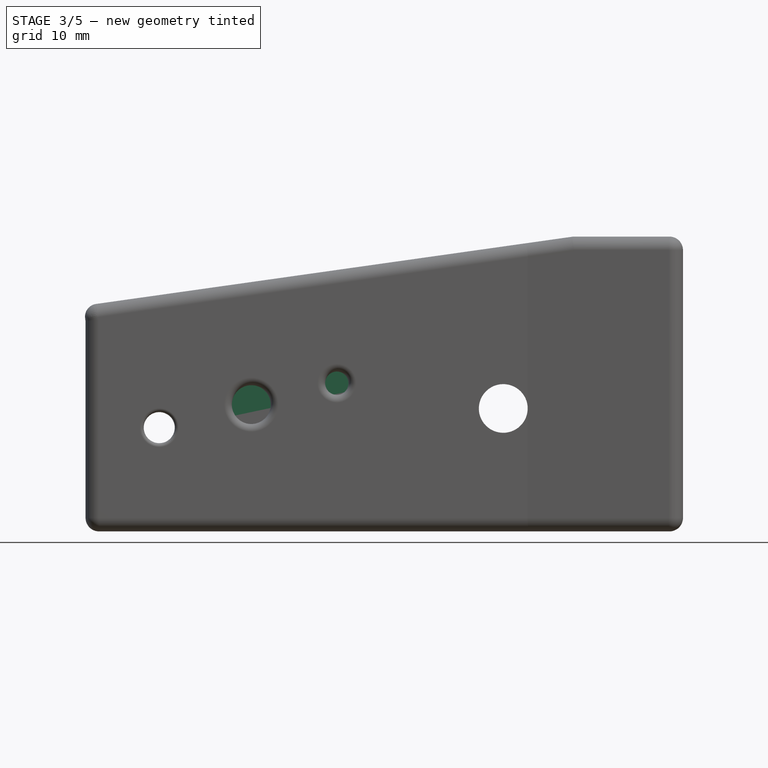
[diagram: stage 3 of 5 — front view after this stage's code; geometry added in this stage tinted green]
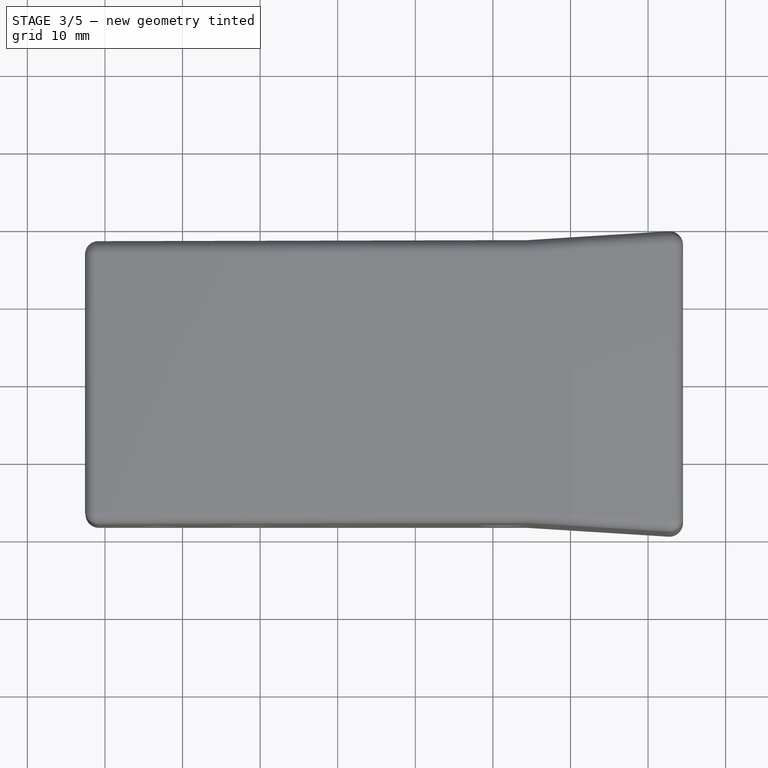
[diagram: stage 3 of 5 — top view after this stage's code; geometry added in this stage tinted green]
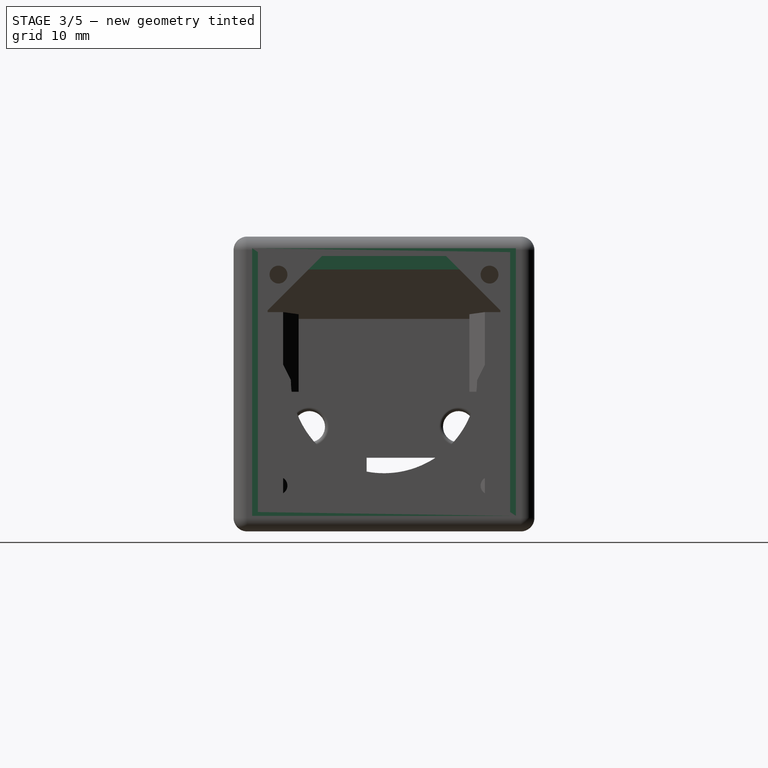
[diagram: stage 3 of 5 — right view after this stage's code; geometry added in this stage tinted green]
FEATURE [PartDesign::Chamfer] Chamfer003  label="m2screws_roofback_sunk"
  Angle = 45
  Base = -> Pad012 [Edge376,Edge382]
  BaseFeature = -> Pad012
  ChamferType = 0
  FlipDirection = false
  Size = 1
  Size2 = 1
  SupportTransform = false
  UseAllEdges = false
FEATURE [PartDesign::Pad] Pad016  label="base_vs_lid_side"
  BaseFeature = -> Chamfer003
  Direction = (0.241922,0,0.970296)
  Length = 15
  Length2 = 100
  Profile = -> Sketch038
  ReferenceAxis = -> Sketch038 [N_Axis]
  Type = 0
FEATURE [PartDesign::Chamfer] Chamfer005  label="base_vs_lid_side_chamfer2"
  Angle = 45
  Base = -> Pad016 [Edge114,Edge259]
  BaseFeature = -> Pad016
  ChamferType = 0
  FlipDirection = false
  Size = 0.9
  Size2 = 1
  SupportTransform = false
  UseAllEdges = false
FEATURE [PartDesign::Pad] Pad017  label="base_vs_lid_top"
  BaseFeature = -> Chamfer005
  Direction = (0,-1,-2e-16)
  Length = 24
  Length2 = 100
  Midplane = true
  Profile = -> Sketch037
  Refine = true
  Type = 0
FEATURE [PartDesign::Pad] Pad019  label="lightguard"
  BaseFeature = -> Pad017
  Direction = (0,0,1)
  Length = 6
  Length2 = 100
  Profile = -> Sketch046
  Type = 0
FEATURE [PartDesign::Chamfer] Chamfer006  label="m2screws_rooftop_sunk"
  Angle = 45
  Base = -> Pad019 [Edge265,Edge113]
  BaseFeature = -> Pad019
  ChamferType = 0
  FlipDirection = false
  Refine = true
  Size = 1
  Size2 = 1
  SupportTransform = false
  UseAllEdges = false
FEATURE [PartDesign::Pocket] Pocket  label="USB-thinnercase"
  BaseFeature = -> Chamfer006
  Direction = (-1,2e-16,-3e-16)
  Length = 1.5
  Length2 = 5
  Profile = -> Sketch050
  ReferenceAxis = -> Sketch050 [N_Axis]
  Reversed = true
  Type = 0
FEATURE [PartDesign::Fillet] Fillet006  label="usb_plug"
  Base = -> Pocket [Edge409]
  BaseFeature = -> Pocket
  Radius = 0.8
  SupportTransform = false
  UseAllEdges = false
FEATURE [PartDesign::Pocket] Pocket029  label="cutout_front"
  BaseFeature = -> Fillet006
  Direction = (-1,2e-16,-3e-16)
  Length = 7
  Length2 = 5
  Profile = -> Sketch060
  ReferenceAxis = -> Sketch060 [N_Axis]
  Reversed = true
  Type = 0
FEATURE [PartDesign::Pad] Pad024  label="lid_left2"
  BaseFeature = -> Pocket029
  Direction = (0.743145,-4e-16,-0.669131)
  Length = 7
  Length2 = 10
  Profile = -> Sketch062
  ReferenceAxis = -> Sketch062 [N_Axis]
  Type = 0
FEATURE [PartDesign::Pad] Pad025  label="lid_left3"
  BaseFeature = -> Pad024
  Direction = (0.996195,-2e-16,0.0871557)
  Length = 7
  Length2 = 10
  Profile = -> Sketch063
  ReferenceAxis = -> Sketch063 [N_Axis]
  Type = 0
FEATURE [PartDesign::Pad] Pad026  label="lid_right1"
  BaseFeature = -> Pad025
  Direction = (0.978148,-2e-16,0.207912)
  Length = 22
  Length2 = 10
  Profile = -> Sketch064
  ReferenceAxis = -> Sketch064 [N_Axis]
  Type = 0
FEATURE [PartDesign::Pad] Pad027  label="lid_right2"
  BaseFeature = -> Pad026
  Direction = (0.743145,-4e-16,-0.669131)
  Length = 8
  Length2 = 10
  Profile = -> Sketch065
  ReferenceAxis = -> Sketch065 [N_Axis]
  Type = 0
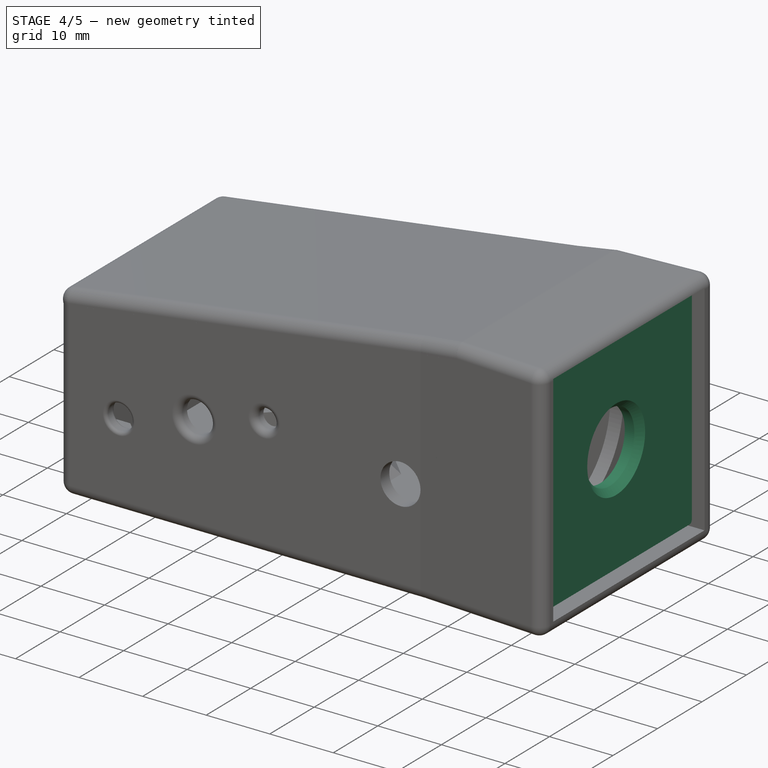
[diagram: stage 4 of 5 — iso view after this stage's code; geometry added in this stage tinted green]
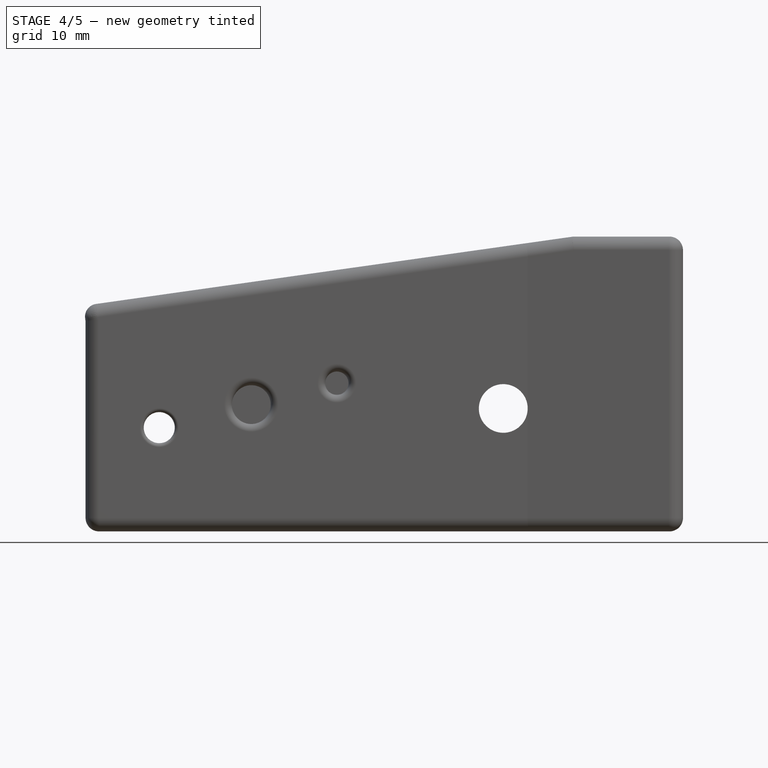
[diagram: stage 4 of 5 — front view after this stage's code; geometry added in this stage tinted green]
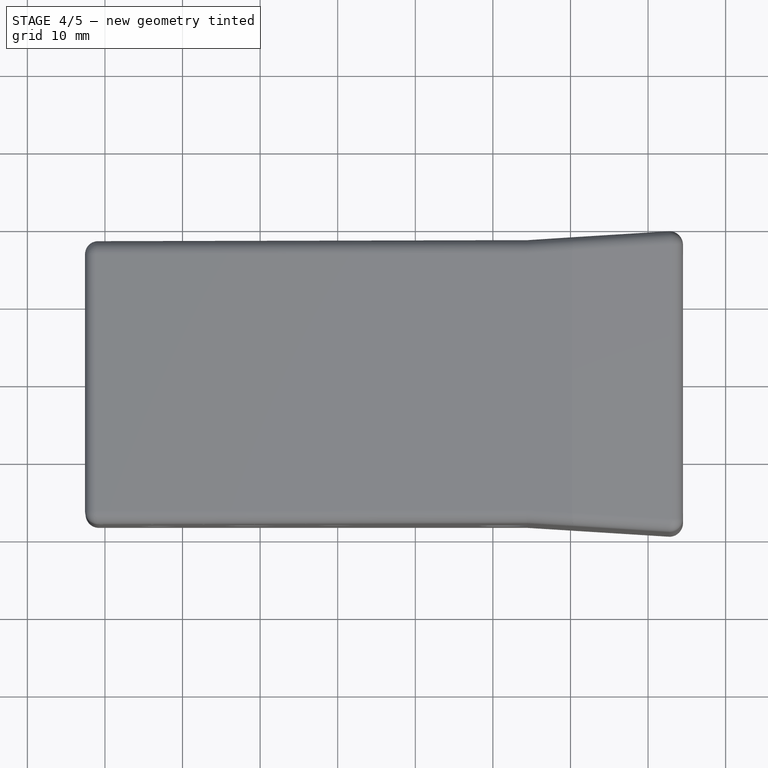
[diagram: stage 4 of 5 — top view after this stage's code; geometry added in this stage tinted green]
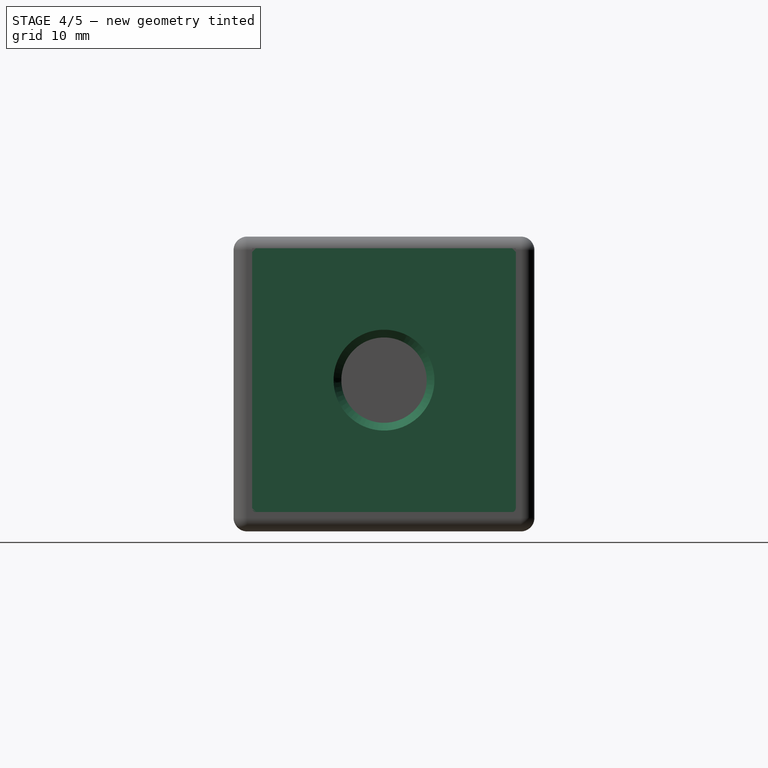
[diagram: stage 4 of 5 — right view after this stage's code; geometry added in this stage tinted green]
FEATURE [PartDesign::Pad] Pad028  label="lid_right3"
  BaseFeature = -> Pad027
  Direction = (0.996195,-2e-16,0.0871557)
  Length = 7
  Length2 = 10
  Profile = -> Sketch066
  ReferenceAxis = -> Sketch066 [N_Axis]
  Type = 0
FEATURE [Sketcher::SketchObject] Sketch069
  AttachmentOffset = pos=(0,-2.25,-29.4) rot=(1,0,0;0.314159rad)
  FullyConstrained = false
  MapMode = 5
  Placement = pos=(-29.4,6e-15,-2.25) rot=(0.62896,0.62896,0.456966;2.28433rad)
  Support = -> [YZ_Plane003]
  sketch-geometry (7):
    g0: LineSegment StartX=-19.25 StartY=-1.5 StartZ=0 EndX=-16 EndY=-1.5 EndZ=0
    g1: LineSegment StartX=-16 StartY=-1.5 StartZ=0 EndX=-16 EndY=-3.5 EndZ=0
    g2: LineSegment StartX=-16 StartY=-3.5 StartZ=0 EndX=-15.25 EndY=-3.5 EndZ=0
    g3: LineSegment StartX=-15.25 StartY=-3.5 StartZ=0 EndX=-15.25 EndY=1.75 EndZ=0
    g4: LineSegment StartX=-15.25 StartY=1.75 StartZ=0 EndX=-16.75 EndY=1.75 EndZ=0
    g5: LineSegment StartX=-16.75 StartY=1.75 StartZ=0 EndX=-16.75 EndY=-1.5 EndZ=0
    g6: LineSegment StartX=-16.75 StartY=-1.5 StartZ=0 EndX=-16 EndY=-1.5 EndZ=0
  constraints (14):
    c: Horizontal(g0)
    c: Coincident(g0,g1)
    c: Vertical(g1)
    c: Coincident(g1,g2)
    c: Horizontal(g2)
    c: Coincident(g2,g3)
    c: Vertical(g3)
    c: Coincident(g3,g4)
    c: Horizontal(g4)
    c: Coincident(g4,g5)
    c: PointOnObject(g5,g0)
    c: Vertical(g5)
    c: Coincident(g5,g6)
    c: Coincident(g6,g1)
FEATURE [PartDesign::Pad] Pad030  label="lid_left1"
  BaseFeature = -> Pad028
  Direction = (0.951057,-2e-16,-0.309017)
  Length = 2
  Length2 = 10
  Midplane = true
  Profile = -> Sketch069
  ReferenceAxis = -> Sketch069 [N_Axis]
  Type = 0
FEATURE [Sketcher::SketchObject] Sketch070
  AttachmentOffset = pos=(0,0,-15.25) rot=(0,0,1;0rad)
  FullyConstrained = false
  MapMode = 5
  Placement = pos=(0,15.25,3.4e-15) rot=(1,0,0;1.5708rad)
  Support = -> [XZ_Plane003]
  sketch-geometry (5):
    g0: ArcOfCircle CenterX=-35.9836 CenterY=1 CenterZ=0 NormalX=0 NormalY=0 NormalZ=1 AngleXU=0 Radius=3.43469 StartAngle=0.925728 EndAngle=1.87123
    g1: LineSegment StartX=-37 StartY=4.28085 StartZ=0 EndX=-37.2875 EndY=4.19177 EndZ=0
    g2: LineSegment StartX=-37.2875 StartY=4.19177 StartZ=0 EndX=-36.2998 EndY=1.07277 EndZ=0
    g3: LineSegment StartX=-36.2998 StartY=1.07277 StartZ=0 EndX=-35.6464 EndY=1.07277 EndZ=0
    g4: LineSegment StartX=-35.6464 StartY=1.07277 StartZ=0 EndX=-33.9185 EndY=3.74452 EndZ=0
  constraints (6):
    c: Tangent(g0,g1) = -1.5708
    c: Coincident(g1,g2)
    c: Coincident(g2,g3)
    c: Horizontal(g3)
    c: Coincident(g3,g4)
    c: Coincident(g4,g0)
FEATURE [PartDesign::Pad] Pad031  label="lid_right4"
  BaseFeature = -> Pad030
  Direction = (0,-1,-2e-16)
  Length = 1
  Length2 = 10
  Profile = -> Sketch070
  ReferenceAxis = -> Sketch070 [N_Axis]
  Reversed = true
  Type = 0
FEATURE [Sketcher::SketchObject] Sketch071
  AttachmentOffset = pos=(0,0,-15.25) rot=(0,0,1;0rad)
  FullyConstrained = false
  MapMode = 5
  Placement = pos=(0,15.25,3.4e-15) rot=(1,0,0;1.5708rad)
  Support = -> [XZ_Plane003]
  sketch-geometry (4):
    g0: LineSegment StartX=-31.509 StartY=-5.32099 StartZ=0 EndX=-29.5526 EndY=-6 EndZ=0
    g1: LineSegment StartX=-29.5526 StartY=-6 StartZ=0 EndX=-29 EndY=-4 EndZ=0
    g2: LineSegment StartX=-29 StartY=-4 StartZ=0 EndX=-30.7206 EndY=-3 EndZ=0
    g3: LineSegment StartX=-30.7206 StartY=-3 StartZ=0 EndX=-31.509 EndY=-5.32099 EndZ=0
  constraints (4):
    c: Coincident(g0,g1)
    c: Coincident(g1,g2)
    c: Coincident(g2,g3)
    c: Coincident(g3,g0)
FEATURE [PartDesign::Pad] Pad032  label="lid_right5"
  BaseFeature = -> Pad031
  Direction = (0,-1,-2e-16)
  Length = 0.75
  Length2 = 10
  Profile = -> Sketch071
  ReferenceAxis = -> Sketch071 [N_Axis]
  Reversed = true
  Type = 0
FEATURE [Sketcher::SketchObject] Sketch072
  FullyConstrained = false
  MapMode = 5
  Placement = pos=(0,0,0) rot=(0.57735,0.57735,0.57735;2.0944rad)
  Support = -> [YZ_Plane068]
  sketch-geometry (36):
    g0: Circle CenterX=13.6 CenterY=-13.6 CenterZ=0 NormalX=0 NormalY=0 NormalZ=1 AngleXU=0 Radius=1.15
    g1: LineSegment StartX=12.9979 StartY=-10 StartZ=0 EndX=16 EndY=-10 EndZ=0
    g2: LineSegment StartX=16.5 StartY=-10.5 StartZ=0 EndX=16.5 EndY=-16 EndZ=0
    g3: LineSegment StartX=16 StartY=-16.5 StartZ=0 EndX=10.5 EndY=-16.5 EndZ=0
    g4: LineSegment StartX=10 StartY=-16 StartZ=0 EndX=10 EndY=-12.9979 EndZ=0
    g5: ArcOfCircle CenterX=13.6 CenterY=-13.6 CenterZ=0 NormalX=0 NormalY=0 NormalZ=1 AngleXU=0 Radius=3.65 StartAngle=1.73651 EndAngle=2.97588
    g6: ArcOfCircle CenterX=16 CenterY=-16 CenterZ=0 NormalX=0 NormalY=0 NormalZ=1 AngleXU=0 Radius=0.5 StartAngle=4.71239 EndAngle=6.28319
    g7: ArcOfCircle CenterX=16 CenterY=-10.5 CenterZ=0 NormalX=0 NormalY=0 NormalZ=1 AngleXU=0 Radius=0.5 StartAngle=0 EndAngle=1.5708
    g8: ArcOfCircle CenterX=10.5 CenterY=-16 CenterZ=0 NormalX=0 NormalY=0 NormalZ=1 AngleXU=0 Radius=0.5 StartAngle=3.14159 EndAngle=4.71239
    g9: Circle CenterX=-13.6 CenterY=-13.6 CenterZ=0 NormalX=0 NormalY=0 NormalZ=1 AngleXU=0 Radius=1.15
    g10: LineSegment StartX=-12.9979 StartY=-10 StartZ=0 EndX=-16 EndY=-10 EndZ=0
    g11: LineSegment StartX=-16.5 StartY=-10.5 StartZ=0 EndX=-16.5 EndY=-16 EndZ=0
    g12: LineSegment StartX=-16 StartY=-16.5 StartZ=0 EndX=-10.5 EndY=-16.5 EndZ=0
    g13: LineSegment StartX=-10 StartY=-16 StartZ=0 EndX=-10 EndY=-12.9979 EndZ=0
    g14: ArcOfCircle CenterX=-13.6 CenterY=-13.6 CenterZ=0 NormalX=0 NormalY=0 NormalZ=1 AngleXU=0 Radius=3.65 StartAngle=0.165711 EndAngle=1.40509
    g15: ArcOfCircle CenterX=-16 CenterY=-16 CenterZ=0 NormalX=0 NormalY=0 NormalZ=1 AngleXU=0 Radius=0.5 StartAngle=3.14159 EndAngle=4.71239
    g16: ArcOfCircle CenterX=-16 CenterY=-10.5 CenterZ=0 NormalX=0 NormalY=0 NormalZ=1 AngleXU=0 Radius=0.5 StartAngle=1.5708 EndAngle=3.14159
    g17: ArcOfCircle CenterX=-10.5 CenterY=-16 CenterZ=0 NormalX=0 NormalY=0 NormalZ=1 AngleXU=0 Radius=0.5 StartAngle=4.71239 EndAngle=6.28319
    g18: Circle CenterX=13.6 CenterY=13.6 CenterZ=0 NormalX=0 NormalY=0 NormalZ=1 AngleXU=0 Radius=1.15
    g19: LineSegment StartX=12.9979 StartY=10 StartZ=0 EndX=16 EndY=10 EndZ=0
    g20: LineSegment StartX=16.5 StartY=10.5 StartZ=0 EndX=16.5 EndY=16 EndZ=0
    g21: LineSegment StartX=16 StartY=16.5 StartZ=0 EndX=10.5 EndY=16.5 EndZ=0
    g22: LineSegment StartX=10 StartY=16 StartZ=0 EndX=10 EndY=12.9979 EndZ=0
    g23: ArcOfCircle CenterX=13.6 CenterY=13.6 CenterZ=0 NormalX=0 NormalY=0 NormalZ=1 AngleXU=0 Radius=3.65 StartAngle=3.3073 EndAngle=4.54668
    g24: ArcOfCircle CenterX=16 CenterY=16 CenterZ=0 NormalX=0 NormalY=0 NormalZ=1 AngleXU=0 Radius=0.5 StartAngle=0 EndAngle=1.5708
    g25: ArcOfCircle CenterX=16 CenterY=10.5 CenterZ=0 NormalX=0 NormalY=0 NormalZ=1 AngleXU=0 Radius=0.5 StartAngle=4.71239 EndAngle=6.28319
    g26: ArcOfCircle CenterX=10.5 CenterY=16 CenterZ=0 NormalX=0 NormalY=0 NormalZ=1 AngleXU=0 Radius=0.5 StartAngle=1.5708 EndAngle=3.14159
    g27: Circle CenterX=-13.6 CenterY=13.6 CenterZ=0 NormalX=0 NormalY=0 NormalZ=1 AngleXU=0 Radius=1.15
    g28: LineSegment StartX=-12.9979 StartY=10 StartZ=0 EndX=-16 EndY=10 EndZ=0
    g29: LineSegment StartX=-16.5 StartY=10.5 StartZ=0 EndX=-16.5 EndY=16 EndZ=0
    g30: LineSegment StartX=-16 StartY=16.5 StartZ=0 EndX=-10.5 EndY=16.5 EndZ=0
    g31: LineSegment StartX=-10 StartY=16 StartZ=0 EndX=-10 EndY=12.9979 EndZ=0
    g32: ArcOfCircle CenterX=-13.6 CenterY=13.6 CenterZ=0 NormalX=0 NormalY=0 NormalZ=1 AngleXU=0 Radius=3.65 StartAngle=4.8781 EndAngle=6.11747
    g33: ArcOfCircle CenterX=-16 CenterY=16 CenterZ=0 NormalX=0 NormalY=0 NormalZ=1 AngleXU=0 Radius=0.5 StartAngle=1.5708 EndAngle=3.14159
    g34: ArcOfCircle CenterX=-16 CenterY=10.5 CenterZ=0 NormalX=0 NormalY=0 NormalZ=1 AngleXU=0 Radius=0.5 StartAngle=3.14159 EndAngle=4.71239
    g35: ArcOfCircle CenterX=-10.5 CenterY=16 CenterZ=0 NormalX=0 NormalY=0 NormalZ=1 AngleXU=0 Radius=0.5 StartAngle=0 EndAngle=1.5708
  constraints (52):
    c: Diameter(g0) = 2.3
    c: Horizontal(g1)
    c: Vertical(g2)
    c: Horizontal(g3)
    c: Vertical(g4)
    c: Coincident(g1,g5)
    c: Tangent(g2,g6) = 1.5708
    c: Tangent(g3,g6) = 1.5708
    c: Tangent(g1,g7) = 1.5708
    c: Tangent(g2,g7) = 1.5708
    c: Tangent(g4,g8) = 1.5708
    c: Tangent(g3,g8) = 1.5708
    c: Diameter(g9) = 2.3
    c: Horizontal(g10)
    c: Vertical(g11)
    c: Horizontal(g12)
    c: Vertical(g13)
    c: Coincident(g10,g14)
    c: Tangent(g11,g15) = -1.5708
    c: Tangent(g12,g15) = -1.5708
    c: Tangent(g10,g16) = -1.5708
    c: Tangent(g11,g16) = -1.5708
    c: Tangent(g13,g17) = -1.5708
    c: Tangent(g12,g17) = -1.5708
    c: Coincident(g4,g5)
    c: Coincident(g13,g14)
    c: Diameter(g18) = 2.3
    c: Horizontal(g19)
    c: Vertical(g20)
    c: Horizontal(g21)
    c: Vertical(g22)
    c: Coincident(g19,g23)
    c: Tangent(g20,g24) = -1.5708
    c: Tangent(g21,g24) = -1.5708
    c: Tangent(g19,g25) = -1.5708
    c: Tangent(g20,g25) = -1.5708
    c: Tangent(g22,g26) = -1.5708
    c: Tangent(g21,g26) = -1.5708
    c: Diameter(g27) = 2.3
    c: Horizontal(g28)
    c: Vertical(g29)
    c: Horizontal(g30)
    c: Vertical(g31)
    c: Coincident(g28,g32)
    c: Tangent(g29,g33) = 1.5708
    c: Tangent(g30,g33) = 1.5708
    c: Tangent(g28,g34) = 1.5708
    c: Tangent(g29,g34) = 1.5708
    c: Tangent(g31,g35) = 1.5708
    c: Tangent(g30,g35) = 1.5708
    c: Coincident(g22,g23)
    c: Coincident(g31,g32)
FEATURE [Sketcher::SketchObject] Sketch073
  AttachmentOffset = pos=(0,0,0) rot=(0,0,1;0.785398rad)
  FullyConstrained = false
  MapMode = 5
  Placement = pos=(0,0,0) rot=(0.678598,0.281085,0.678598;2.59356rad)
  Support = -> [YZ_Plane068]
  sketch-geometry (17):
    g0: LineSegment StartX=1.5 StartY=1.5 StartZ=0 EndX=-1.5 EndY=-1.5 EndZ=0
    g1: ArcOfCircle CenterX=-7.75 CenterY=3 CenterZ=0 NormalX=0 NormalY=0 NormalZ=1 AngleXU=0 Radius=1 StartAngle=1e-16 EndAngle=3.14159
    g2: ArcOfCircle CenterX=-7.75 CenterY=-3 CenterZ=0 NormalX=0 NormalY=0 NormalZ=1 AngleXU=0 Radius=1 StartAngle=3.14159 EndAngle=6.28319
    g3: LineSegment StartX=-8.75 StartY=3 StartZ=0 EndX=-8.75 EndY=-3 EndZ=0
    g4: LineSegment StartX=-6.75 StartY=-3 StartZ=0 EndX=-6.75 EndY=3 EndZ=0
    g5: ArcOfCircle CenterX=7.75 CenterY=3 CenterZ=0 NormalX=0 NormalY=0 NormalZ=1 AngleXU=0 Radius=1 StartAngle=0 EndAngle=3.14159
    g6: ArcOfCircle CenterX=7.75 CenterY=-3 CenterZ=0 NormalX=0 NormalY=0 NormalZ=1 AngleXU=0 Radius=1 StartAngle=3.14159 EndAngle=6.28319
    g7: LineSegment StartX=8.75 StartY=3 StartZ=0 EndX=8.75 EndY=-3 EndZ=0
    g8: LineSegment StartX=6.75 StartY=-3 StartZ=0 EndX=6.75 EndY=3 EndZ=0
    g9: ArcOfCircle CenterX=3 CenterY=-7.75 CenterZ=0 NormalX=0 NormalY=0 NormalZ=1 AngleXU=0 Radius=1 StartAngle=4.71239 EndAngle=7.85398
    g10: ArcOfCircle CenterX=-3 CenterY=-7.75 CenterZ=0 NormalX=0 NormalY=0 NormalZ=1 AngleXU=0 Radius=1 StartAngle=1.5708 EndAngle=4.71239
    g11: LineSegment StartX=3 StartY=-8.75 StartZ=0 EndX=-3 EndY=-8.75 EndZ=0
    g12: LineSegment StartX=-3 StartY=-6.75 StartZ=0 EndX=3 EndY=-6.75 EndZ=0
    g13: ArcOfCircle CenterX=3 CenterY=7.75 CenterZ=0 NormalX=0 NormalY=0 NormalZ=1 AngleXU=0 Radius=1 StartAngle=4.71239 EndAngle=7.85398
    g14: ArcOfCircle CenterX=-3 CenterY=7.75 CenterZ=0 NormalX=0 NormalY=0 NormalZ=1 AngleXU=0 Radius=1 StartAngle=1.5708 EndAngle=4.71239
    g15: LineSegment StartX=3 StartY=8.75 StartZ=0 EndX=-3 EndY=8.75 EndZ=0
    g16: LineSegment StartX=-3 StartY=6.75 StartZ=0 EndX=3 EndY=6.75 EndZ=0
  constraints (34):
    c: Tangent(g1,g3) = -1.5708
    c: Tangent(g3,g2) = -1.5708
    c: Tangent(g2,g4) = -1.5708
    c: Tangent(g4,g1) = -1.5708
    c: Equal(g1,g2)
    c: DistanceX(g2,g2) = 2
    c: DistanceY(g4,g4) = 6
    c: Tangent(g5,g7) = 1.5708
    c: Tangent(g7,g6) = 1.5708
    c: Tangent(g6,g8) = 1.5708
    c: Tangent(g8,g5) = 1.5708
    c: Equal(g5,g6)
    c: Equal(g5,g1)
    c: Symmetric(g5,g6,g-1)
    c: Symmetric(g1,g2,g-1)
    c: Symmetric(g1,g5,g-2)
    c: DistanceX(g1,g5) = 17.5
    c: Tangent(g9,g11) = 1.5708
    c: Tangent(g11,g10) = 1.5708
    c: Tangent(g10,g12) = 1.5708
    c: Tangent(g12,g9) = 1.5708
    c: Equal(g9,g10)
    c: Tangent(g13,g15) = -1.5708
    c: Tangent(g15,g14) = -1.5708
    c: Tangent(g14,g16) = -1.5708
    c: Tangent(g16,g13) = -1.5708
    c: Equal(g13,g14)
    c: Equal(g13,g9)
    c: Equal(g15,g8)
    c: Equal(g13,g1)
    c: Symmetric(g10,g9,g-2)
    c: Symmetric(g13,g14,g-2)
    c: Symmetric(g13,g9,g-1)
    c: DistanceY(g9,g13) = 17.5
FEATURE [Sketcher::SketchObject] Sketch074
  FullyConstrained = true
  MapMode = 5
  Placement = pos=(0,0,0) rot=(0.57735,0.57735,0.57735;2.0944rad)
  Support = -> [YZ_Plane068]
  sketch-geometry (13):
    g0: LineSegment StartX=-13.6 StartY=13.6 StartZ=0 EndX=13.6 EndY=13.6 EndZ=0
    g1: LineSegment StartX=13.6 StartY=13.6 StartZ=0 EndX=13.6 EndY=-13.6 EndZ=0
    g2: LineSegment StartX=13.6 StartY=-13.6 StartZ=0 EndX=-13.6 EndY=-13.6 EndZ=0
    g3: LineSegment StartX=-13.6 StartY=-13.6 StartZ=0 EndX=-13.6 EndY=13.6 EndZ=0
    g4: LineSegment StartX=16.5 StartY=-17 StartZ=0 EndX=-16.5 EndY=-17 EndZ=0
    g5: LineSegment StartX=-17 StartY=-16.5 StartZ=0 EndX=-17 EndY=16.5 EndZ=0
    g6: LineSegment StartX=-16.5 StartY=17 StartZ=0 EndX=16.5 EndY=17 EndZ=0
    g7: LineSegment StartX=17 StartY=16.5 StartZ=0 EndX=17 EndY=-16.5 EndZ=0
    g8: ArcOfCircle CenterX=-16.5 CenterY=16.5 CenterZ=0 NormalX=0 NormalY=0 NormalZ=1 AngleXU=0 Radius=0.5 StartAngle=1.5708 EndAngle=3.14159
    g9: ArcOfCircle CenterX=16.5 CenterY=16.5 CenterZ=0 NormalX=0 NormalY=0 NormalZ=1 AngleXU=0 Radius=0.5 StartAngle=0 EndAngle=1.5708
    g10: ArcOfCircle CenterX=16.5 CenterY=-16.5 CenterZ=0 NormalX=0 NormalY=0 NormalZ=1 AngleXU=0 Radius=0.5 StartAngle=4.71239 EndAngle=6.28319
    g11: ArcOfCircle CenterX=-16.5 CenterY=-16.5 CenterZ=0 NormalX=0 NormalY=0 NormalZ=1 AngleXU=0 Radius=0.5 StartAngle=3.14159 EndAngle=4.71239
    g12: Circle CenterX=0 CenterY=0 CenterZ=0 NormalX=0 NormalY=0 NormalZ=1 AngleXU=0 Radius=5.5
  constraints (30):
    c: Coincident(g0,g1)
    c: Coincident(g1,g2)
    c: Coincident(g2,g3)
    c: Coincident(g3,g0)
    c: Horizontal(g2)
    c: Vertical(g1)
    c: DistanceX(g2,g2) = 27.2
    c: DistanceY(g1,g1) = 27.2
    c: Symmetric(g0,g0,g-2)
    c: Symmetric(g2,g0,g-1)
    c: Horizontal(g4)
    c: Horizontal(g6)
    c: Vertical(g5)
    c: Vertical(g7)
    c: Tangent(g6,g8) = 1.5708
    c: Tangent(g5,g8) = 1.5708
    c: Tangent(g6,g9) = 1.5708
    c: Tangent(g7,g9) = 1.5708
    c: Tangent(g7,g10) = 1.5708
    c: Tangent(g4,g10) = 1.5708
    c: Tangent(g5,g11) = 1.5708
    c: Tangent(g4,g11) = 1.5708
    c: Equal(g11,g8)
    c: Radius(g11) = 0.5
    c: DistanceX(g4,g4) = 33
    c: DistanceY(g5,g5) = 33
    c: Symmetric(g11,g10,g-2)
    c: Coincident(g12,g-1)
    c: Radius(g12) = 5.5
    c: Symmetric(g9,g10,g-1)
FEATURE [PartDesign::Pad] Pad033  label="front_base003"
  Direction = (1,-2e-16,3e-16)
  Length = 2.5
  Length2 = 100
  Placement = pos=(0,0,0) rot=(0.57735,0.57735,0.57735;2.0944rad)
  Profile = -> Sketch074
  Refine = true
  Type = 0
FEATURE [PartDesign::Pocket] Pocket031  label="led_ring003"
  BaseFeature = -> Pad033
  Direction = (-1,2e-16,-3e-16)
  Length = 2.25
  Length2 = 100
  Placement = pos=(0,0,0) rot=(0.57735,0.57735,0.57735;2.0944rad)
  Profile = -> Sketch073
  Refine = true
  Reversed = true
  Type = 0
  expr: Length = <<front_base003>>.Length - 0.25mm
FEATURE [Sketcher::SketchObject] Sketch075
  FullyConstrained = true
  MapMode = 5
  Placement = pos=(0,0,0) rot=(0.57735,0.57735,0.57735;2.0944rad)
  Support = -> [YZ_Plane068]
  sketch-geometry (8):
    g0: LineSegment StartX=-13.6 StartY=13.6 StartZ=0 EndX=13.6 EndY=13.6 EndZ=0
    g1: LineSegment StartX=13.6 StartY=13.6 StartZ=0 EndX=13.6 EndY=-13.6 EndZ=0
    g2: LineSegment StartX=13.6 StartY=-13.6 StartZ=0 EndX=-13.6 EndY=-13.6 EndZ=0
    g3: LineSegment StartX=-13.6 StartY=-13.6 StartZ=0 EndX=-13.6 EndY=13.6 EndZ=0
    g4: Circle CenterX=-13.6 CenterY=-13.6 CenterZ=0 NormalX=0 NormalY=0 NormalZ=1 AngleXU=0 Radius=1.15
    g5: Circle CenterX=13.6 CenterY=-13.6 CenterZ=0 NormalX=0 NormalY=0 NormalZ=1 AngleXU=0 Radius=1.15
    g6: Circle CenterX=-13.6 CenterY=13.6 CenterZ=0 NormalX=0 NormalY=0 NormalZ=1 AngleXU=0 Radius=1.15
    g7: Circle CenterX=13.6 CenterY=13.6 CenterZ=0 NormalX=0 NormalY=0 NormalZ=1 AngleXU=0 Radius=1.15
  constraints (18):
    c: Coincident(g0,g1)
    c: Coincident(g1,g2)
    c: Coincident(g2,g3)
    c: Coincident(g3,g0)
    c: Horizontal(g2)
    c: Vertical(g3)
    c: Symmetric(g0,g0,g-2)
    c: Symmetric(g1,g0,g-1)
    c: DistanceY(g1,g1) = 27.2
    c: DistanceX(g0,g0) = 27.2
    c: Coincident(g4,g2)
    c: Coincident(g5,g1)
    c: Radius(g4) = 1.15
    c: Coincident(g6,g0)
    c: Coincident(g7,g0)
    c: Equal(g7,g6)
    c: Equal(g6,g5)
    c: Equal(g5,g4)
FEATURE [PartDesign::Pocket] Pocket030  label="m2_screw003"
  BaseFeature = -> Pocket031
  Direction = (-1,2e-16,-3e-16)
  Length = 2
  Length2 = 100
  Placement = pos=(0,0,0) rot=(0.57735,0.57735,0.57735;2.0944rad)
  Profile = -> Sketch075
  ReferenceAxis = -> Sketch075 [N_Axis]
  Refine = true
  Reversed = true
  Type = 0
FEATURE [PartDesign::Pad] Pad034  label="distance_pcb001"
  BaseFeature = -> Pocket030
  Direction = (1,-2e-16,3e-16)
  Length = 2
  Length2 = 10
  Placement = pos=(0,0,0) rot=(0.57735,0.57735,0.57735;2.0944rad)
  Profile = -> Sketch072
  ReferenceAxis = -> Sketch072 [N_Axis]
  Reversed = true
  Type = 0
FEATURE [Sketcher::SketchObject] Sketch076
  AttachmentOffset = pos=(0,0,1) rot=(0,0,1;0rad)
  FullyConstrained = false
  MapMode = 5
  Placement = pos=(1,-2e-16,2e-16) rot=(0.57735,0.57735,0.57735;2.0944rad)
  Support = -> [YZ_Plane068]
  sketch-geometry (28):
    g0: LineSegment StartX=15.75 StartY=-14.8413 StartZ=0 EndX=15.75 EndY=-12.3587 EndZ=0
    g1: LineSegment StartX=15.75 StartY=-12.3587 StartZ=0 EndX=13.6 EndY=-11.1174 EndZ=0
    g2: LineSegment StartX=13.6 StartY=-11.1174 StartZ=0 EndX=11.45 EndY=-12.3587 EndZ=0
    g3: LineSegment StartX=11.45 StartY=-12.3587 StartZ=0 EndX=11.45 EndY=-14.8413 EndZ=0
    g4: LineSegment StartX=11.45 StartY=-14.8413 StartZ=0 EndX=13.6 EndY=-16.0826 EndZ=0
    g5: LineSegment StartX=13.6 StartY=-16.0826 StartZ=0 EndX=15.75 EndY=-14.8413 EndZ=0
    g6: Circle CenterX=13.6 CenterY=-13.6 CenterZ=0 NormalX=0 NormalY=0 NormalZ=1 AngleXU=0 Radius=2.48261
    g7: LineSegment StartX=-15.75 StartY=-14.8251 StartZ=0 EndX=-15.75 EndY=-12.3425 EndZ=0
    g8: LineSegment StartX=-15.75 StartY=-12.3425 StartZ=0 EndX=-13.6 EndY=-11.1012 EndZ=0
    g9: LineSegment StartX=-13.6 StartY=-11.1012 StartZ=0 EndX=-11.45 EndY=-12.3425 EndZ=0
    g10: LineSegment StartX=-11.45 StartY=-12.3425 StartZ=0 EndX=-11.45 EndY=-14.8251 EndZ=0
    g11: LineSegment StartX=-11.45 StartY=-14.8251 StartZ=0 EndX=-13.6 EndY=-16.0664 EndZ=0
    g12: LineSegment StartX=-13.6 StartY=-16.0664 StartZ=0 EndX=-15.75 EndY=-14.8251 EndZ=0
    g13: Circle CenterX=-13.6 CenterY=-13.5838 CenterZ=0 NormalX=0 NormalY=0 NormalZ=1 AngleXU=0 Radius=2.48261
    g14: LineSegment StartX=15.75 StartY=14.8413 StartZ=0 EndX=15.75 EndY=12.3587 EndZ=0
    g15: LineSegment StartX=15.75 StartY=12.3587 StartZ=0 EndX=13.6 EndY=11.1174 EndZ=0
    g16: LineSegment StartX=13.6 StartY=11.1174 StartZ=0 EndX=11.45 EndY=12.3587 EndZ=0
    g17: LineSegment StartX=11.45 StartY=12.3587 StartZ=0 EndX=11.45 EndY=14.8413 EndZ=0
    g18: LineSegment StartX=11.45 StartY=14.8413 StartZ=0 EndX=13.6 EndY=16.0826 EndZ=0
    g19: LineSegment StartX=13.6 StartY=16.0826 StartZ=0 EndX=15.75 EndY=14.8413 EndZ=0
    g20: Circle CenterX=13.6 CenterY=13.6 CenterZ=0 NormalX=0 NormalY=0 NormalZ=1 AngleXU=0 Radius=2.48261
    g21: LineSegment StartX=-15.75 StartY=14.8251 StartZ=0 EndX=-15.75 EndY=12.3425 EndZ=0
    g22: LineSegment StartX=-15.75 StartY=12.3425 StartZ=0 EndX=-13.6 EndY=11.1012 EndZ=0
    g23: LineSegment StartX=-13.6 StartY=11.1012 StartZ=0 EndX=-11.45 EndY=12.3425 EndZ=0
    g24: LineSegment StartX=-11.45 StartY=12.3425 StartZ=0 EndX=-11.45 EndY=14.8251 EndZ=0
    g25: LineSegment StartX=-11.45 StartY=14.8251 StartZ=0 EndX=-13.6 EndY=16.0664 EndZ=0
    g26: LineSegment StartX=-13.6 StartY=16.0664 StartZ=0 EndX=-15.75 EndY=14.8251 EndZ=0
    g27: Circle CenterX=-13.6 CenterY=13.5838 CenterZ=0 NormalX=0 NormalY=0 NormalZ=1 AngleXU=0 Radius=2.48261
  constraints (58):
    c: Coincident(g0,g1)
    c: Coincident(g1,g2)
    c: Coincident(g2,g3)
    c: Coincident(g3,g4)
    c: Coincident(g4,g5)
    c: Coincident(g5,g0)
    c: Equal(g0, g1-g5) x5
    c: PointOnObject(g0,g6)
    c: PointOnObject(g1,g6)
    c: PointOnObject(g2,g6)
    c: PointOnObject(g3,g6)
    c: PointOnObject(g4,g6)
    c: PointOnObject(g5,g6)
    c: Vertical(g0)
    c: DistanceX(g2,g0) = 4.3
    c: Coincident(g7,g8)
    c: Coincident(g8,g9)
    c: Coincident(g9,g10)
    c: Coincident(g10,g11)
    c: Coincident(g11,g12)
    c: Coincident(g12,g7)
    c: Equal(g7, g8-g12) x5
    c: PointOnObject(g7,g13)
    c: PointOnObject(g8,g13)
    c: PointOnObject(g9,g13)
    c: PointOnObject(g10,g13)
    c: PointOnObject(g11,g13)
    c: PointOnObject(g12,g13)
    c: Vertical(g7)
    c: DistanceX(g7,g9) = 4.3
    c: Coincident(g14,g15)
    c: Coincident(g15,g16)
    c: Coincident(g16,g17)
    c: Coincident(g17,g18)
    c: Coincident(g18,g19)
    c: Coincident(g19,g14)
    c: Equal(g14, g15-g19) x5
    c: PointOnObject(g14,g20)
    c: PointOnObject(g15,g20)
    c: PointOnObject(g16,g20)
    c: PointOnObject(g17,g20)
    c: PointOnObject(g18,g20)
    c: PointOnObject(g19,g20)
    c: Vertical(g14)
    c: Coincident(g21,g22)
    c: Coincident(g22,g23)
    c: Coincident(g23,g24)
    c: Coincident(g24,g25)
    c: Coincident(g25,g26)
    c: Coincident(g26,g21)
    c: Equal(g21, g22-g26) x5
    c: PointOnObject(g21,g27)
    c: PointOnObject(g22,g27)
    c: PointOnObject(g23,g27)
    c: PointOnObject(g24,g27)
    c: PointOnObject(g25,g27)
    c: PointOnObject(g26,g27)
    c: Vertical(g21)
FEATURE [PartDesign::Pocket] Pocket032  label="m2_nuts001"
  BaseFeature = -> Pad034
  Direction = (-1,2e-16,-3e-16)
  Length = 2
  Length2 = 5
  Placement = pos=(0,0,0) rot=(0.57735,0.57735,0.57735;2.0944rad)
  Profile = -> Sketch076
  ReferenceAxis = -> Sketch076 [N_Axis]
  Type = 0
FEATURE [PartDesign::Chamfer] Chamfer008
  Angle = 45
  Base = -> Pocket032 [Edge70]
  BaseFeature = -> Pocket032
  ChamferType = 0
  FlipDirection = false
  Placement = pos=(0,0,0) rot=(0.57735,0.57735,0.57735;2.0944rad)
  Size = 1
  Size2 = 1
  SupportTransform = false
  UseAllEdges = false
FEATURE [PartDesign::Body] Body005  label="front_white_printedwithnuts"
  Group = -> [Sketch074,Pad033,Sketch073,Pocket031,Sketch075,Pocket030,Sketch072,Sketch076,Pad034,Pocket032,Chamfer008]
  Origin = -> Origin068
  Placement = pos=(2,0,0) rot=(1,0,0;3.14159rad)
  Tip = -> Chamfer008
FEATURE [Sketcher::SketchObject] Sketch077
  AttachmentOffset = pos=(0,0,-6.5) rot=(0,0,1;0rad)
  FullyConstrained = false
  MapMode = 5
  Placement = pos=(0,0,-6.5) rot=(0,0,1;0rad)
  Support = -> [XY_Plane003]
  sketch-geometry (6):
    g0: LineSegment StartX=-66 StartY=17 StartZ=0 EndX=-71 EndY=12 EndZ=0
    g1: LineSegment StartX=-71 StartY=12 StartZ=0 EndX=-71 EndY=17 EndZ=0
    g2: LineSegment StartX=-71 StartY=17 StartZ=0 EndX=-66 EndY=17 EndZ=0
    g3: LineSegment StartX=-66 StartY=-17 StartZ=0 EndX=-71 EndY=-12 EndZ=0
    g4: LineSegment StartX=-71 StartY=-12 StartZ=0 EndX=-71 EndY=-17 EndZ=0
    g5: LineSegment StartX=-71 StartY=-17 StartZ=0 EndX=-66 EndY=-17 EndZ=0
  constraints (10):
    c: Coincident(g0,g1)
    c: Vertical(g1)
    c: Coincident(g1,g2)
    c: Coincident(g2,g0)
    c: Horizontal(g2)
    c: Coincident(g3,g4)
    c: Vertical(g4)
    c: Coincident(g4,g5)
    c: Coincident(g5,g3)
    c: Horizontal(g5)
FEATURE [PartDesign::Pad] Pad035  label="pcb_support_top"
  BaseFeature = -> Pad032
  Direction = (0,0,1)
  Length = 2
  Length2 = 10
  Profile = -> Sketch077
  ReferenceAxis = -> Sketch077 [N_Axis]
  Type = 0
FEATURE [PartDesign::Chamfer] Chamfer  label="pcb_support_top_cham"
  Angle = 45
  Base = -> Pad035 [Edge216,Edge276]
  BaseFeature = -> Pad035
  ChamferType = 0
  FlipDirection = false
  Size = 1.5
  Size2 = 1
  SupportTransform = false
  UseAllEdges = false
FEATURE [Sketcher::SketchObject] Sketch078
  AttachmentOffset = pos=(0,0,-6) rot=(0,0,1;0rad)
  FullyConstrained = false
  MapMode = 5
  Placement = pos=(0,0,-6) rot=(0,0,1;0rad)
  Support = -> [XY_Plane003]
  sketch-geometry (6):
    g0: LineSegment StartX=-70 StartY=13 StartZ=0 EndX=-70 EndY=15.75 EndZ=0
    g1: LineSegment StartX=-70 StartY=15.75 StartZ=0 EndX=-67.25 EndY=15.75 EndZ=0
    g2: LineSegment StartX=-67.25 StartY=15.75 StartZ=0 EndX=-70 EndY=13 EndZ=0
    g3: LineSegment StartX=-70 StartY=-13 StartZ=0 EndX=-70 EndY=-15.75 EndZ=0
    g4: LineSegment StartX=-70 StartY=-15.75 StartZ=0 EndX=-67.25 EndY=-15.75 EndZ=0
    g5: LineSegment StartX=-67.25 StartY=-15.75 StartZ=0 EndX=-70 EndY=-13 EndZ=0
  constraints (10):
    c: Vertical(g0)
    c: Coincident(g0,g1)
    c: Horizontal(g1)
    c: Coincident(g1,g2)
    c: Coincident(g2,g0)
    c: Vertical(g3)
    c: Coincident(g3,g4)
    c: Horizontal(g4)
    c: Coincident(g4,g5)
    c: Coincident(g5,g3)
FEATURE [PartDesign::Pad] Pad036  label="pcb_support_top_2"
  BaseFeature = -> Chamfer
  Direction = (0,0,1)
  Length = 1.5
  Length2 = 10
  Profile = -> Sketch078
  ReferenceAxis = -> Sketch078 [N_Axis]
  Reversed = true
  Type = 0
FEATURE [PartDesign::Body] Body002  label="case_base"
  Group = -> [Sketch011,Pad003,Sketch012,Pad004,Sketch013,Pad005,Sketch014,Fillet,Pocket008,Sketch015,Fillet001,Sketch018,Pocket009,Sketch019,Pocket010,Sketch020,Sketch047,Pocket023,Pocket011,Fillet003,Pad006,Sketch034,Pad,Sketch021,Sketch067,Pad029,Pad009,Sketch022,Pocket012,Sketch023,Sketch035,Pad014,Pocket013,Sketch024,Sketch025,Pocket014,Pad010,Chamfer002,Sketch026,Pocket015,Pad011,Fillet004,Sketch028,+40 more]
  Origin = -> Origin003
  Tip = -> Pad036
FEATURE [Part::FeaturePython] Slice  # WARN: FeaturePython — macro-defined, semantics opaque (R4)
  Base = -> Body002
  Mode = 1
  Tolerance = 0
  Tools = -> [Part001]
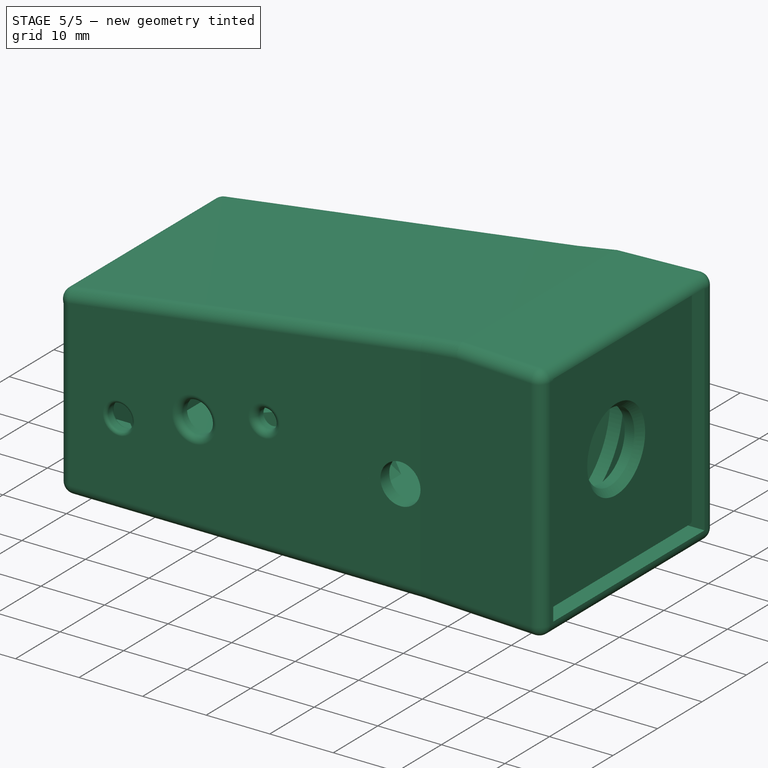
[diagram: stage 5 of 5 — iso view after this stage's code; geometry added in this stage tinted green]
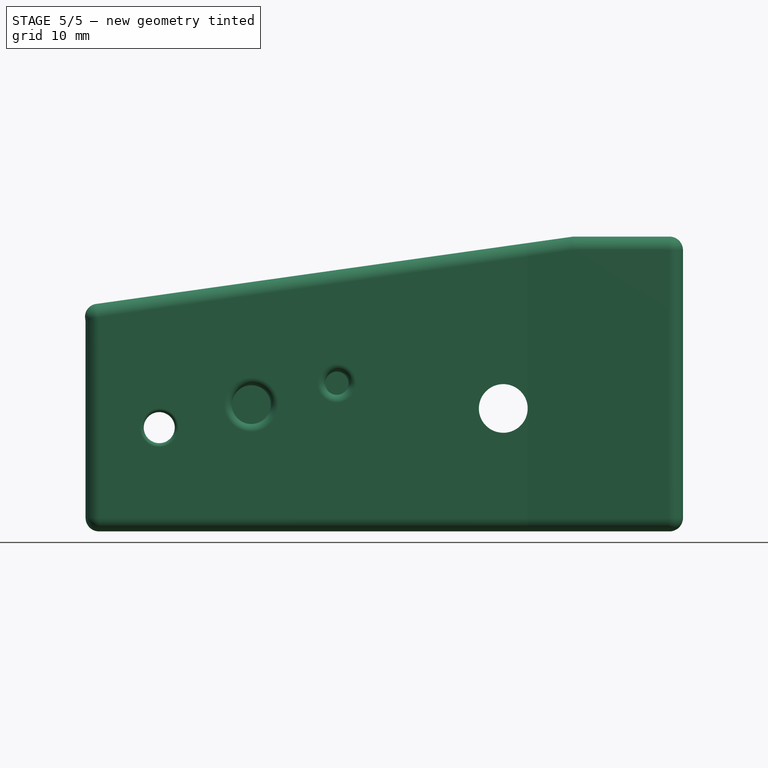
[diagram: stage 5 of 5 — front view after this stage's code; geometry added in this stage tinted green]
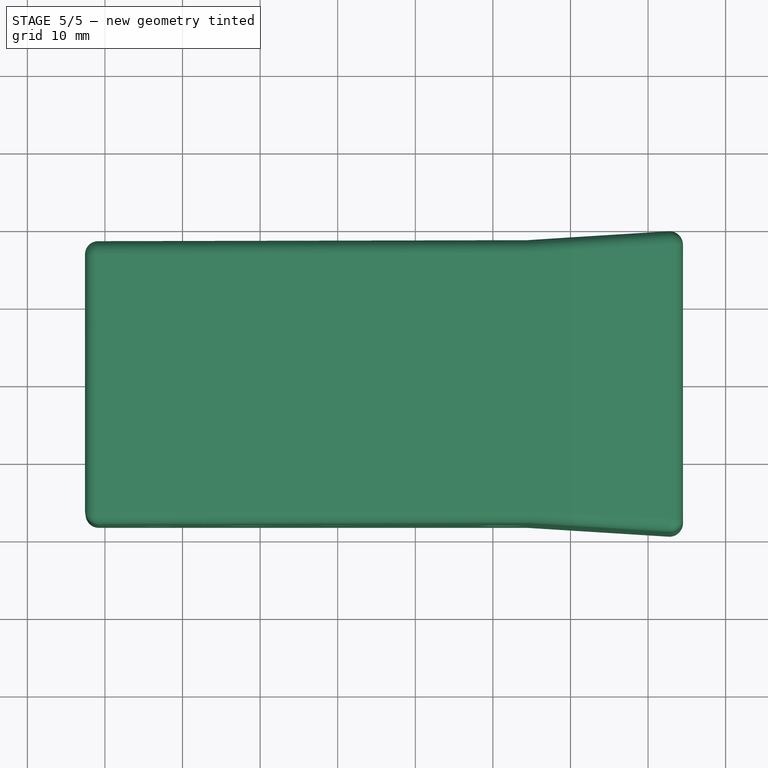
[diagram: stage 5 of 5 — top view after this stage's code; geometry added in this stage tinted green]
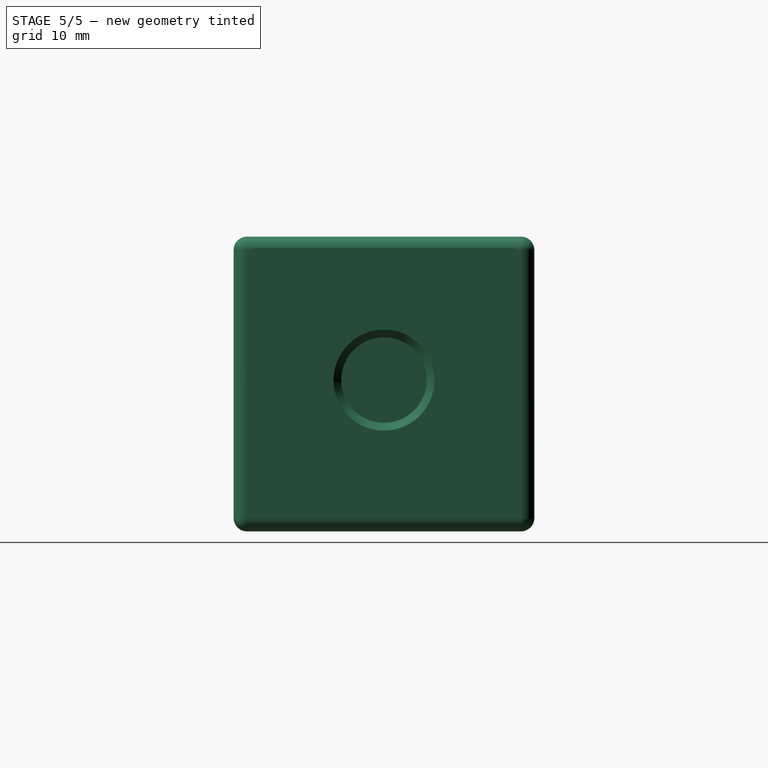
[diagram: stage 5 of 5 — right view after this stage's code; geometry added in this stage tinted green]
FEATURE [Part::FeaturePython] Slice_child0  label="Slice.0"  # WARN: FeaturePython — macro-defined, semantics opaque (R4)
  Base = -> Slice
  FilterType = 1
  Invert = false
  OverrideMaxVal = 0
  WindowFrom = 80
  WindowTo = 100
  items = 0
FEATURE [Part::FeaturePython] Slice_child1  label="Slice.1"  # WARN: FeaturePython — macro-defined, semantics opaque (R4)
  Base = -> Slice
  FilterType = 1
  Invert = false
  OverrideMaxVal = 0
  WindowFrom = 80
  WindowTo = 100
  items = 1
FEATURE [Part::FeaturePython] Slice_child2  label="Slice.2"  # WARN: FeaturePython — macro-defined, semantics opaque (R4)
  Base = -> Slice
  FilterType = 1
  Invert = false
  OverrideMaxVal = 0
  WindowFrom = 80
  WindowTo = 100
  items = 2
FEATURE [Part::FeaturePython] Slice_child3  label="Slice.3"  # WARN: FeaturePython — macro-defined, semantics opaque (R4)
  Base = -> Slice
  FilterType = 1
  Invert = false
  OverrideMaxVal = 0
  WindowFrom = 80
  WindowTo = 100
  items = 3
FEATURE [Part::FeaturePython] Slice_child4  label="Slice.4"  # WARN: FeaturePython — macro-defined, semantics opaque (R4)
  Base = -> Slice
  FilterType = 1
  Invert = false
  OverrideMaxVal = 0
  WindowFrom = 80
  WindowTo = 100
  items = 4
FEATURE [Part::FeaturePython] Slice_child5  label="Slice.5"  # WARN: FeaturePython — macro-defined, semantics opaque (R4)
  Base = -> Slice
  FilterType = 1
  Invert = false
  OverrideMaxVal = 0
  WindowFrom = 80
  WindowTo = 100
  items = 5
FEATURE [Part::FeaturePython] Slice_child6  label="Slice.6"  # WARN: FeaturePython — macro-defined, semantics opaque (R4)
  Base = -> Slice
  FilterType = 1
  Invert = false
  OverrideMaxVal = 0
  WindowFrom = 80
  WindowTo = 100
  items = 6
FEATURE [Part::FeaturePython] Slice_child7  label="Slice.7"  # WARN: FeaturePython — macro-defined, semantics opaque (R4)
  Base = -> Slice
  FilterType = 1
  Invert = false
  OverrideMaxVal = 0
  WindowFrom = 80
  WindowTo = 100
  items = 7
FEATURE [Part::FeaturePython] Slice_child8  label="Slice.8"  # WARN: FeaturePython — macro-defined, semantics opaque (R4)
  Base = -> Slice
  FilterType = 1
  Invert = false
  OverrideMaxVal = 0
  WindowFrom = 80
  WindowTo = 100
  items = 8
FEATURE [Part::FeaturePython] Slice_child9  label="Slice.9"  # WARN: FeaturePython — macro-defined, semantics opaque (R4)
  Base = -> Slice
  FilterType = 1
  Invert = false
  OverrideMaxVal = 0
  WindowFrom = 80
  WindowTo = 100
  items = 9
FEATURE [Part::FeaturePython] Slice_child10  label="Slice.10"  # WARN: FeaturePython — macro-defined, semantics opaque (R4)
  Base = -> Slice
  FilterType = 1
  Invert = false
  OverrideMaxVal = 0
  WindowFrom = 80
  WindowTo = 100
  items = 10
FEATURE [Part::FeaturePython] Slice_child11  label="Slice.11"  # WARN: FeaturePython — macro-defined, semantics opaque (R4)
  Base = -> Slice
  FilterType = 1
  Invert = false
  OverrideMaxVal = 0
  WindowFrom = 80
  WindowTo = 100
  items = 11
FEATURE [Part::FeaturePython] Slice_child12  label="Slice.12"  # WARN: FeaturePython — macro-defined, semantics opaque (R4)
  Base = -> Slice
  FilterType = 1
  Invert = false
  OverrideMaxVal = 0
  WindowFrom = 80
  WindowTo = 100
  items = 12
FEATURE [App::DocumentObjectGroup] GrExplode_Slice  label="Exploded Slice"
  Group = -> [Slice_child0,Slice_child1,Slice_child2,Slice_child3,Slice_child4,Slice_child5,Slice_child6,Slice_child7,Slice_child8,Slice_child9,Slice_child10,Slice_child11,Slice_child12]
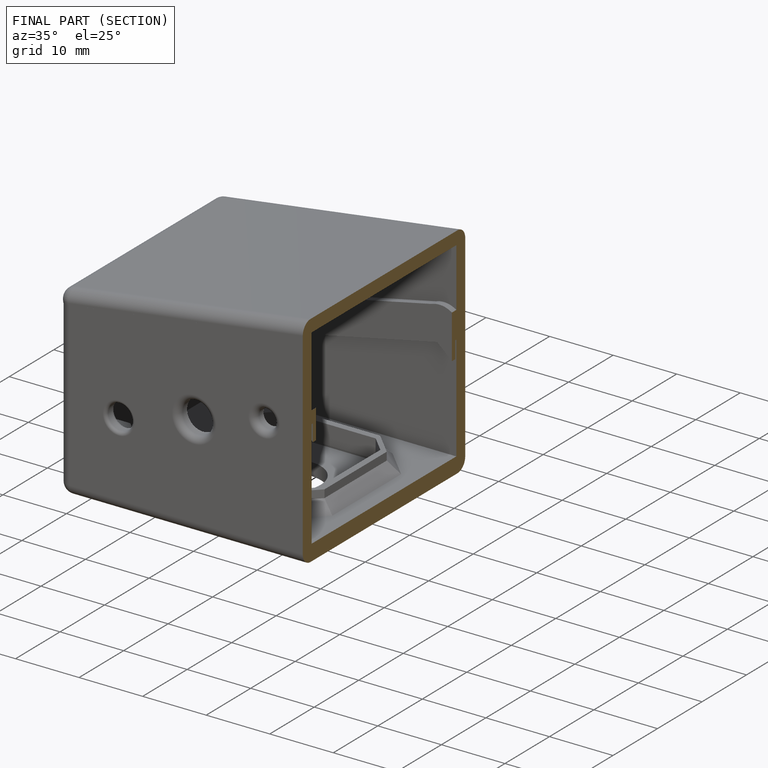
[diagram: finished part — half-section view (interior)]
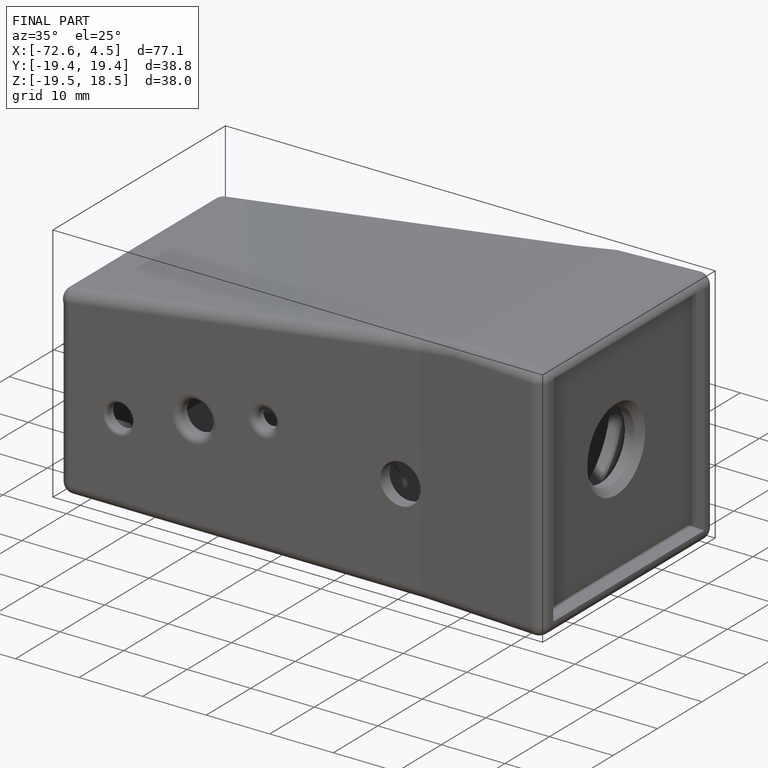
[diagram: finished part — iso view with bounding-box wireframe]
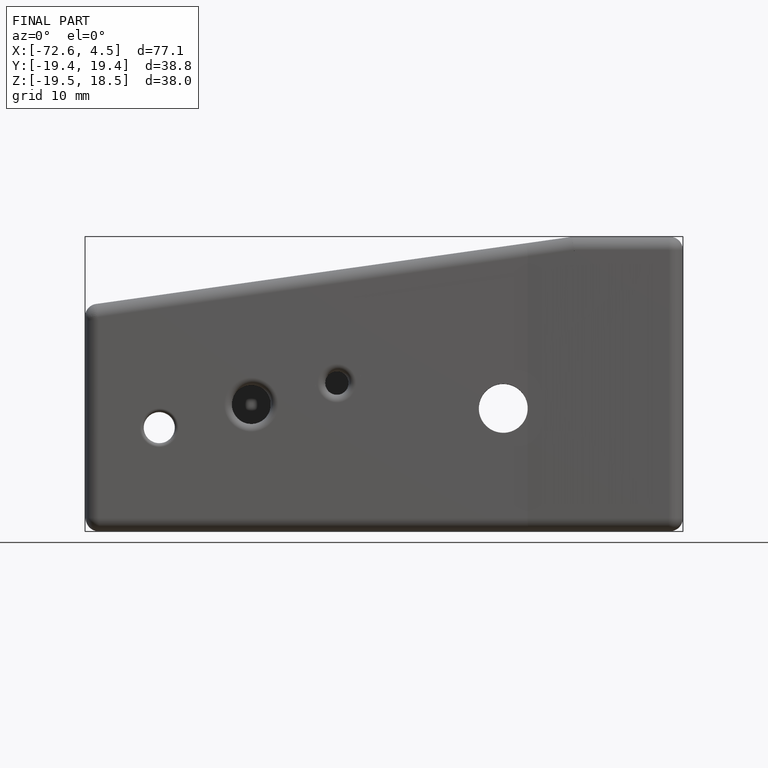
[diagram: finished part — front view with bounding-box wireframe]
